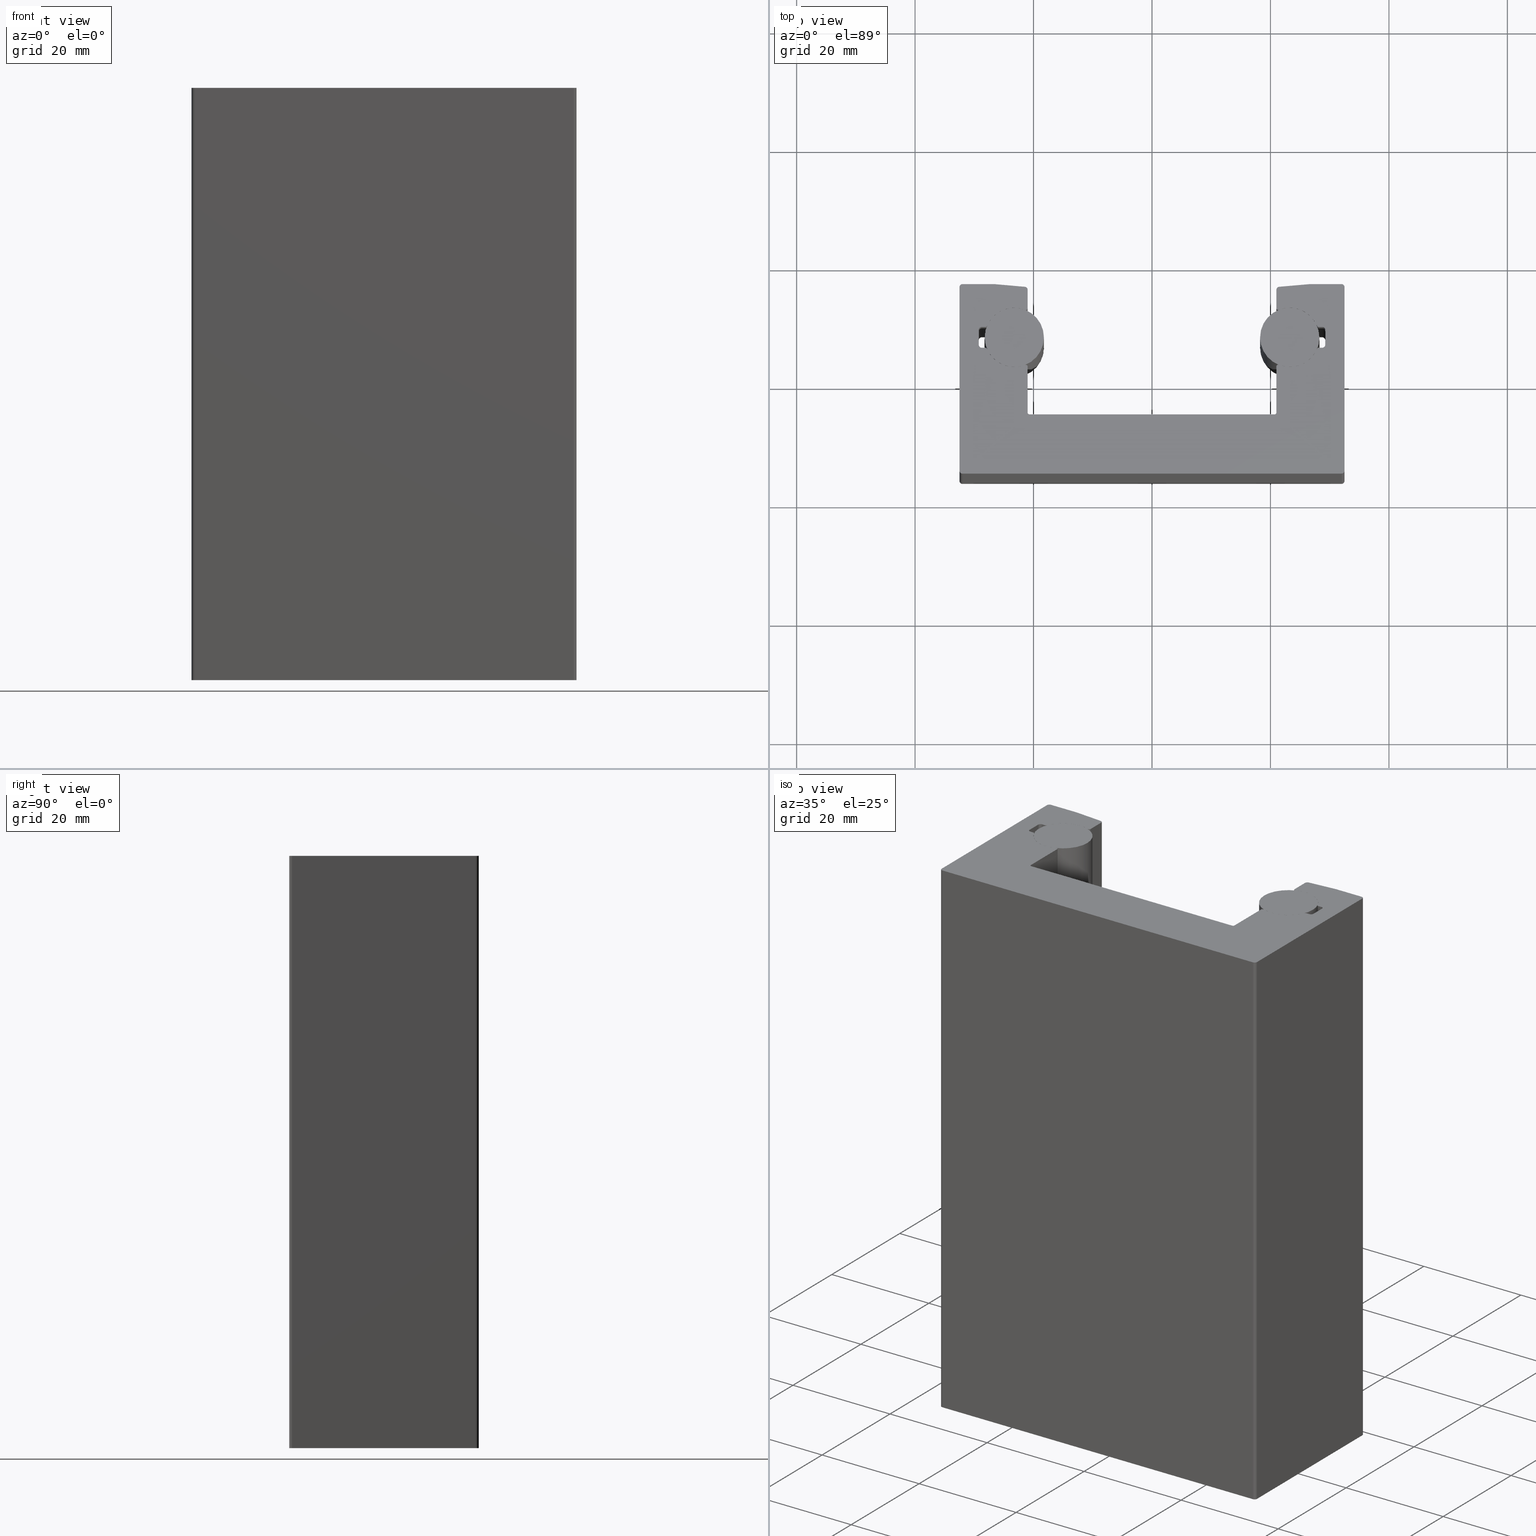
[diagram: canonical four-view strip — front | top / right | iso, engineering-drawing reading convention]
A machine part, canonical four-view strip (front | top / right | iso — engineering-drawing reading convention). The complete STEP part file that produces these views, byte-faithful:
ISO-10303-21;
HEADER;
/* Generated by software containing ST-Developer
 * from STEP Tools, Inc. (www.steptools.com) 
 */

FILE_DESCRIPTION(
/* description */ ('GUIDA LINEARE MR65 COMPLETA DI TONDINO'),
/* implementation_level */ '2;1');

FILE_NAME(
/* name */ 
'C:\\Users\\tecnico5\\Desktop\\SITOWEB\\APRGD000002\\APRGD000002.stp',
/* time_stamp */ '2022-07-27T08:11:50+02:00',
/* author */ ('tecnico3.vi'),
/* organization */ (''),
/* preprocessor_version */ 'ST-DEVELOPER v18.1',
/* originating_system */ 'Autodesk Inventor 2022',
/* authorisation */ '');

FILE_SCHEMA (('AUTOMOTIVE_DESIGN { 1 0 10303 214 3 1 1 }'));
ENDSEC;

DATA;
#10=MECHANICAL_DESIGN_GEOMETRIC_PRESENTATION_REPRESENTATION('',(#27,#28),
#1697);
#11=ITEM_DEFINED_TRANSFORMATION($,$,#1003,#1108);
#12=ITEM_DEFINED_TRANSFORMATION($,$,#1102,#1109);
#13=ITEM_DEFINED_TRANSFORMATION($,$,#1102,#1110);
#14=(
REPRESENTATION_RELATIONSHIP($,$,#1712,#1711)
REPRESENTATION_RELATIONSHIP_WITH_TRANSFORMATION(#11)
SHAPE_REPRESENTATION_RELATIONSHIP()
);
#15=(
REPRESENTATION_RELATIONSHIP($,$,#1713,#1711)
REPRESENTATION_RELATIONSHIP_WITH_TRANSFORMATION(#12)
SHAPE_REPRESENTATION_RELATIONSHIP()
);
#16=(
REPRESENTATION_RELATIONSHIP($,$,#1713,#1711)
REPRESENTATION_RELATIONSHIP_WITH_TRANSFORMATION(#13)
SHAPE_REPRESENTATION_RELATIONSHIP()
);
#17=CONTEXT_DEPENDENT_SHAPE_REPRESENTATION(#14,#1708);
#18=CONTEXT_DEPENDENT_SHAPE_REPRESENTATION(#15,#1709);
#19=CONTEXT_DEPENDENT_SHAPE_REPRESENTATION(#16,#1710);
#20=NEXT_ASSEMBLY_USAGE_OCCURRENCE('DM01.6532.00A:1','DM01.6532.00A:1',
'DM01.6532.00A:1',#1715,#1716,'DM01.6532.00A:1');
#21=NEXT_ASSEMBLY_USAGE_OCCURRENCE('03.435.00:1','03.435.00:1',
'03.435.00:1',#1715,#1717,'03.435.00:1');
#22=NEXT_ASSEMBLY_USAGE_OCCURRENCE('03.435.00:2','03.435.00:2',
'03.435.00:2',#1715,#1717,'03.435.00:2');
#23=SHAPE_REPRESENTATION_RELATIONSHIP('SRR','None',#1712,#25);
#24=SHAPE_REPRESENTATION_RELATIONSHIP('SRR','None',#1713,#26);
#25=ADVANCED_BREP_SHAPE_REPRESENTATION('',(#29),#1695);
#26=ADVANCED_BREP_SHAPE_REPRESENTATION('',(#30),#1696);
#27=STYLED_ITEM('',(#966),#29);
#28=STYLED_ITEM('',(#967),#30);
#29=MANIFOLD_SOLID_BREP('Solido1',#938);
#30=MANIFOLD_SOLID_BREP('Solido1',#939);
#31=PLANE('',#1007);
#32=PLANE('',#1011);
#33=PLANE('',#1015);
#34=PLANE('',#1019);
#35=PLANE('',#1026);
#36=PLANE('',#1030);
#37=PLANE('',#1040);
#38=PLANE('',#1050);
#39=PLANE('',#1054);
#40=PLANE('',#1058);
#41=PLANE('',#1062);
#42=PLANE('',#1063);
#43=PLANE('',#1076);
#44=PLANE('',#1086);
#45=PLANE('',#1089);
#46=PLANE('',#1091);
#47=PLANE('',#1095);
#48=PLANE('',#1099);
#49=PLANE('',#1100);
#50=PLANE('',#1101);
#51=PLANE('',#1103);
#52=PLANE('',#1107);
#53=FACE_OUTER_BOUND('',#102,.T.);
#54=FACE_OUTER_BOUND('',#103,.T.);
#55=FACE_OUTER_BOUND('',#104,.T.);
#56=FACE_OUTER_BOUND('',#105,.T.);
#57=FACE_OUTER_BOUND('',#106,.T.);
#58=FACE_OUTER_BOUND('',#107,.T.);
#59=FACE_OUTER_BOUND('',#108,.T.);
#60=FACE_OUTER_BOUND('',#109,.T.);
#61=FACE_OUTER_BOUND('',#110,.T.);
#62=FACE_OUTER_BOUND('',#111,.T.);
#63=FACE_OUTER_BOUND('',#112,.T.);
#64=FACE_OUTER_BOUND('',#113,.T.);
#65=FACE_OUTER_BOUND('',#114,.T.);
#66=FACE_OUTER_BOUND('',#115,.T.);
#67=FACE_OUTER_BOUND('',#116,.T.);
#68=FACE_OUTER_BOUND('',#117,.T.);
#69=FACE_OUTER_BOUND('',#118,.T.);
#70=FACE_OUTER_BOUND('',#119,.T.);
#71=FACE_OUTER_BOUND('',#120,.T.);
#72=FACE_OUTER_BOUND('',#121,.T.);
#73=FACE_OUTER_BOUND('',#122,.T.);
#74=FACE_OUTER_BOUND('',#123,.T.);
#75=FACE_OUTER_BOUND('',#124,.T.);
#76=FACE_OUTER_BOUND('',#125,.T.);
#77=FACE_OUTER_BOUND('',#126,.T.);
#78=FACE_OUTER_BOUND('',#127,.T.);
#79=FACE_OUTER_BOUND('',#128,.T.);
#80=FACE_OUTER_BOUND('',#129,.T.);
#81=FACE_OUTER_BOUND('',#130,.T.);
#82=FACE_OUTER_BOUND('',#131,.T.);
#83=FACE_OUTER_BOUND('',#132,.T.);
#84=FACE_OUTER_BOUND('',#133,.T.);
#85=FACE_OUTER_BOUND('',#134,.T.);
#86=FACE_OUTER_BOUND('',#135,.T.);
#87=FACE_OUTER_BOUND('',#136,.T.);
#88=FACE_OUTER_BOUND('',#137,.T.);
#89=FACE_OUTER_BOUND('',#138,.T.);
#90=FACE_OUTER_BOUND('',#139,.T.);
#91=FACE_OUTER_BOUND('',#140,.T.);
#92=FACE_OUTER_BOUND('',#141,.T.);
#93=FACE_OUTER_BOUND('',#142,.T.);
#94=FACE_OUTER_BOUND('',#143,.T.);
#95=FACE_OUTER_BOUND('',#144,.T.);
#96=FACE_OUTER_BOUND('',#145,.T.);
#97=FACE_OUTER_BOUND('',#146,.T.);
#98=FACE_OUTER_BOUND('',#147,.T.);
#99=FACE_OUTER_BOUND('',#148,.T.);
#100=FACE_OUTER_BOUND('',#149,.T.);
#101=FACE_OUTER_BOUND('',#150,.T.);
#102=EDGE_LOOP('',(#592,#593,#594,#595));
#103=EDGE_LOOP('',(#596,#597,#598,#599));
#104=EDGE_LOOP('',(#600,#601,#602,#603));
#105=EDGE_LOOP('',(#604,#605,#606,#607));
#106=EDGE_LOOP('',(#608,#609,#610,#611));
#107=EDGE_LOOP('',(#612,#613,#614,#615));
#108=EDGE_LOOP('',(#616,#617,#618,#619));
#109=EDGE_LOOP('',(#620,#621,#622,#623));
#110=EDGE_LOOP('',(#624,#625,#626,#627));
#111=EDGE_LOOP('',(#628,#629,#630,#631));
#112=EDGE_LOOP('',(#632,#633,#634,#635));
#113=EDGE_LOOP('',(#636,#637,#638,#639));
#114=EDGE_LOOP('',(#640,#641,#642,#643));
#115=EDGE_LOOP('',(#644,#645,#646,#647));
#116=EDGE_LOOP('',(#648,#649,#650,#651));
#117=EDGE_LOOP('',(#652,#653,#654,#655));
#118=EDGE_LOOP('',(#656,#657,#658,#659));
#119=EDGE_LOOP('',(#660,#661,#662,#663));
#120=EDGE_LOOP('',(#664,#665,#666,#667));
#121=EDGE_LOOP('',(#668,#669,#670,#671));
#122=EDGE_LOOP('',(#672,#673,#674,#675));
#123=EDGE_LOOP('',(#676,#677,#678,#679));
#124=EDGE_LOOP('',(#680,#681,#682,#683));
#125=EDGE_LOOP('',(#684,#685,#686,#687));
#126=EDGE_LOOP('',(#688,#689,#690,#691));
#127=EDGE_LOOP('',(#692,#693,#694,#695));
#128=EDGE_LOOP('',(#696,#697,#698,#699));
#129=EDGE_LOOP('',(#700,#701,#702,#703,#704,#705,#706,#707,#708,#709,#710,
#711,#712,#713,#714,#715,#716,#717,#718,#719,#720,#721,#722,#723,#724,#725,
#726,#727,#728,#729,#730,#731,#732,#733,#734,#735,#736,#737,#738,#739,#740,
#741,#742,#743));
#130=EDGE_LOOP('',(#744,#745,#746,#747));
#131=EDGE_LOOP('',(#748,#749,#750,#751,#752,#753,#754,#755,#756,#757,#758,
#759,#760,#761,#762,#763,#764,#765,#766,#767,#768,#769,#770,#771,#772,#773,
#774,#775,#776,#777,#778,#779,#780,#781,#782,#783,#784,#785,#786,#787,#788,
#789,#790,#791));
#132=EDGE_LOOP('',(#792,#793,#794,#795));
#133=EDGE_LOOP('',(#796,#797,#798,#799));
#134=EDGE_LOOP('',(#800,#801,#802,#803));
#135=EDGE_LOOP('',(#804,#805,#806,#807));
#136=EDGE_LOOP('',(#808,#809,#810,#811));
#137=EDGE_LOOP('',(#812,#813,#814,#815));
#138=EDGE_LOOP('',(#816,#817,#818,#819));
#139=EDGE_LOOP('',(#820,#821,#822,#823));
#140=EDGE_LOOP('',(#824,#825,#826,#827));
#141=EDGE_LOOP('',(#828,#829,#830,#831));
#142=EDGE_LOOP('',(#832,#833,#834,#835));
#143=EDGE_LOOP('',(#836,#837,#838,#839));
#144=EDGE_LOOP('',(#840,#841,#842,#843));
#145=EDGE_LOOP('',(#844,#845,#846,#847));
#146=EDGE_LOOP('',(#848,#849,#850,#851));
#147=EDGE_LOOP('',(#852,#853,#854,#855));
#148=EDGE_LOOP('',(#856));
#149=EDGE_LOOP('',(#857,#858,#859,#860));
#150=EDGE_LOOP('',(#861));
#151=LINE('',#1417,#232);
#152=LINE('',#1420,#233);
#153=LINE('',#1423,#234);
#154=LINE('',#1425,#235);
#155=LINE('',#1426,#236);
#156=LINE('',#1432,#237);
#157=LINE('',#1435,#238);
#158=LINE('',#1437,#239);
#159=LINE('',#1438,#240);
#160=LINE('',#1444,#241);
#161=LINE('',#1447,#242);
#162=LINE('',#1450,#243);
#163=LINE('',#1452,#244);
#164=LINE('',#1453,#245);
#165=LINE('',#1459,#246);
#166=LINE('',#1462,#247);
#167=LINE('',#1464,#248);
#168=LINE('',#1465,#249);
#169=LINE('',#1470,#250);
#170=LINE('',#1477,#251);
#171=LINE('',#1480,#252);
#172=LINE('',#1483,#253);
#173=LINE('',#1485,#254);
#174=LINE('',#1486,#255);
#175=LINE('',#1492,#256);
#176=LINE('',#1495,#257);
#177=LINE('',#1498,#258);
#178=LINE('',#1500,#259);
#179=LINE('',#1501,#260);
#180=LINE('',#1506,#261);
#181=LINE('',#1512,#262);
#182=LINE('',#1518,#263);
#183=LINE('',#1521,#264);
#184=LINE('',#1522,#265);
#185=LINE('',#1527,#266);
#186=LINE('',#1533,#267);
#187=LINE('',#1539,#268);
#188=LINE('',#1540,#269);
#189=LINE('',#1546,#270);
#190=LINE('',#1549,#271);
#191=LINE('',#1552,#272);
#192=LINE('',#1554,#273);
#193=LINE('',#1555,#274);
#194=LINE('',#1560,#275);
#195=LINE('',#1564,#276);
#196=LINE('',#1566,#277);
#197=LINE('',#1567,#278);
#198=LINE('',#1573,#279);
#199=LINE('',#1576,#280);
#200=LINE('',#1579,#281);
#201=LINE('',#1581,#282);
#202=LINE('',#1582,#283);
#203=LINE('',#1584,#284);
#204=LINE('',#1586,#285);
#205=LINE('',#1590,#286);
#206=LINE('',#1597,#287);
#207=LINE('',#1605,#288);
#208=LINE('',#1609,#289);
#209=LINE('',#1613,#290);
#210=LINE('',#1617,#291);
#211=LINE('',#1621,#292);
#212=LINE('',#1625,#293);
#213=LINE('',#1629,#294);
#214=LINE('',#1636,#295);
#215=LINE('',#1644,#296);
#216=LINE('',#1647,#297);
#217=LINE('',#1648,#298);
#218=LINE('',#1650,#299);
#219=LINE('',#1652,#300);
#220=LINE('',#1654,#301);
#221=LINE('',#1655,#302);
#222=LINE('',#1657,#303);
#223=LINE('',#1659,#304);
#224=LINE('',#1660,#305);
#225=LINE('',#1662,#306);
#226=LINE('',#1664,#307);
#227=LINE('',#1666,#308);
#228=LINE('',#1668,#309);
#229=LINE('',#1671,#310);
#230=LINE('',#1673,#311);
#231=LINE('',#1685,#312);
#232=VECTOR('',#1119,10.);
#233=VECTOR('',#1122,10.);
#234=VECTOR('',#1125,10.);
#235=VECTOR('',#1126,10.);
#236=VECTOR('',#1127,10.);
#237=VECTOR('',#1134,10.);
#238=VECTOR('',#1137,10.);
#239=VECTOR('',#1138,10.);
#240=VECTOR('',#1139,10.);
#241=VECTOR('',#1144,10.);
#242=VECTOR('',#1147,10.);
#243=VECTOR('',#1150,10.);
#244=VECTOR('',#1151,10.);
#245=VECTOR('',#1152,10.);
#246=VECTOR('',#1159,10.);
#247=VECTOR('',#1162,10.);
#248=VECTOR('',#1163,10.);
#249=VECTOR('',#1164,10.);
#250=VECTOR('',#1169,10.);
#251=VECTOR('',#1176,10.);
#252=VECTOR('',#1179,10.);
#253=VECTOR('',#1182,10.);
#254=VECTOR('',#1183,10.);
#255=VECTOR('',#1184,10.);
#256=VECTOR('',#1189,10.);
#257=VECTOR('',#1192,10.);
#258=VECTOR('',#1195,10.);
#259=VECTOR('',#1196,10.);
#260=VECTOR('',#1197,10.);
#261=VECTOR('',#1202,10.);
#262=VECTOR('',#1209,10.);
#263=VECTOR('',#1216,10.);
#264=VECTOR('',#1221,10.);
#265=VECTOR('',#1222,10.);
#266=VECTOR('',#1227,10.);
#267=VECTOR('',#1234,10.);
#268=VECTOR('',#1245,10.);
#269=VECTOR('',#1246,10.);
#270=VECTOR('',#1251,10.);
#271=VECTOR('',#1254,10.);
#272=VECTOR('',#1257,10.);
#273=VECTOR('',#1258,10.);
#274=VECTOR('',#1259,10.);
#275=VECTOR('',#1264,10.);
#276=VECTOR('',#1269,10.);
#277=VECTOR('',#1270,10.);
#278=VECTOR('',#1271,10.);
#279=VECTOR('',#1276,10.);
#280=VECTOR('',#1279,10.);
#281=VECTOR('',#1282,10.);
#282=VECTOR('',#1283,10.);
#283=VECTOR('',#1284,10.);
#284=VECTOR('',#1287,10.);
#285=VECTOR('',#1288,10.);
#286=VECTOR('',#1291,10.);
#287=VECTOR('',#1298,10.);
#288=VECTOR('',#1305,10.);
#289=VECTOR('',#1308,10.);
#290=VECTOR('',#1311,10.);
#291=VECTOR('',#1316,10.);
#292=VECTOR('',#1321,10.);
#293=VECTOR('',#1324,10.);
#294=VECTOR('',#1327,10.);
#295=VECTOR('',#1334,10.);
#296=VECTOR('',#1341,10.);
#297=VECTOR('',#1344,10.);
#298=VECTOR('',#1345,10.);
#299=VECTOR('',#1348,10.);
#300=VECTOR('',#1351,10.);
#301=VECTOR('',#1354,10.);
#302=VECTOR('',#1355,10.);
#303=VECTOR('',#1358,10.);
#304=VECTOR('',#1361,10.);
#305=VECTOR('',#1362,10.);
#306=VECTOR('',#1365,10.);
#307=VECTOR('',#1368,10.);
#308=VECTOR('',#1371,10.);
#309=VECTOR('',#1374,10.);
#310=VECTOR('',#1379,10.);
#311=VECTOR('',#1382,10.);
#312=VECTOR('',#1401,5.);
#313=CIRCLE('',#1005,0.5);
#314=CIRCLE('',#1006,0.5);
#315=CIRCLE('',#1009,0.5);
#316=CIRCLE('',#1010,0.5);
#317=CIRCLE('',#1013,0.5);
#318=CIRCLE('',#1014,0.5);
#319=CIRCLE('',#1017,0.5);
#320=CIRCLE('',#1018,0.5);
#321=CIRCLE('',#1021,0.5);
#322=CIRCLE('',#1022,0.5);
#323=CIRCLE('',#1024,0.5);
#324=CIRCLE('',#1025,0.5);
#325=CIRCLE('',#1028,0.3);
#326=CIRCLE('',#1029,0.3);
#327=CIRCLE('',#1032,0.3);
#328=CIRCLE('',#1033,0.3);
#329=CIRCLE('',#1035,5.);
#330=CIRCLE('',#1036,5.);
#331=CIRCLE('',#1038,0.3);
#332=CIRCLE('',#1039,0.3);
#333=CIRCLE('',#1042,0.3);
#334=CIRCLE('',#1043,0.3);
#335=CIRCLE('',#1045,5.);
#336=CIRCLE('',#1046,5.);
#337=CIRCLE('',#1048,0.3);
#338=CIRCLE('',#1049,0.3);
#339=CIRCLE('',#1052,0.5);
#340=CIRCLE('',#1053,0.5);
#341=CIRCLE('',#1056,0.5);
#342=CIRCLE('',#1057,0.5);
#343=CIRCLE('',#1060,0.5);
#344=CIRCLE('',#1061,0.5);
#345=CIRCLE('',#1064,0.3);
#346=CIRCLE('',#1065,0.3);
#347=CIRCLE('',#1066,5.);
#348=CIRCLE('',#1067,0.3);
#349=CIRCLE('',#1068,0.3);
#350=CIRCLE('',#1069,5.);
#351=CIRCLE('',#1070,0.3);
#352=CIRCLE('',#1071,0.5);
#353=CIRCLE('',#1072,0.5);
#354=CIRCLE('',#1073,0.5);
#355=CIRCLE('',#1075,0.5);
#356=CIRCLE('',#1077,0.5);
#357=CIRCLE('',#1078,0.5);
#358=CIRCLE('',#1079,0.3);
#359=CIRCLE('',#1080,5.);
#360=CIRCLE('',#1081,0.3);
#361=CIRCLE('',#1082,0.3);
#362=CIRCLE('',#1083,5.);
#363=CIRCLE('',#1084,0.3);
#364=CIRCLE('',#1085,0.3);
#365=CIRCLE('',#1104,5.);
#366=CIRCLE('',#1106,5.);
#367=VERTEX_POINT('',#1413);
#368=VERTEX_POINT('',#1414);
#369=VERTEX_POINT('',#1416);
#370=VERTEX_POINT('',#1418);
#371=VERTEX_POINT('',#1422);
#372=VERTEX_POINT('',#1424);
#373=VERTEX_POINT('',#1428);
#374=VERTEX_POINT('',#1430);
#375=VERTEX_POINT('',#1434);
#376=VERTEX_POINT('',#1436);
#377=VERTEX_POINT('',#1440);
#378=VERTEX_POINT('',#1441);
#379=VERTEX_POINT('',#1443);
#380=VERTEX_POINT('',#1445);
#381=VERTEX_POINT('',#1449);
#382=VERTEX_POINT('',#1451);
#383=VERTEX_POINT('',#1455);
#384=VERTEX_POINT('',#1457);
#385=VERTEX_POINT('',#1461);
#386=VERTEX_POINT('',#1463);
#387=VERTEX_POINT('',#1467);
#388=VERTEX_POINT('',#1469);
#389=VERTEX_POINT('',#1473);
#390=VERTEX_POINT('',#1474);
#391=VERTEX_POINT('',#1476);
#392=VERTEX_POINT('',#1478);
#393=VERTEX_POINT('',#1482);
#394=VERTEX_POINT('',#1484);
#395=VERTEX_POINT('',#1488);
#396=VERTEX_POINT('',#1489);
#397=VERTEX_POINT('',#1491);
#398=VERTEX_POINT('',#1493);
#399=VERTEX_POINT('',#1497);
#400=VERTEX_POINT('',#1499);
#401=VERTEX_POINT('',#1503);
#402=VERTEX_POINT('',#1505);
#403=VERTEX_POINT('',#1509);
#404=VERTEX_POINT('',#1511);
#405=VERTEX_POINT('',#1515);
#406=VERTEX_POINT('',#1517);
#407=VERTEX_POINT('',#1524);
#408=VERTEX_POINT('',#1526);
#409=VERTEX_POINT('',#1530);
#410=VERTEX_POINT('',#1532);
#411=VERTEX_POINT('',#1542);
#412=VERTEX_POINT('',#1543);
#413=VERTEX_POINT('',#1545);
#414=VERTEX_POINT('',#1547);
#415=VERTEX_POINT('',#1551);
#416=VERTEX_POINT('',#1553);
#417=VERTEX_POINT('',#1557);
#418=VERTEX_POINT('',#1559);
#419=VERTEX_POINT('',#1563);
#420=VERTEX_POINT('',#1565);
#421=VERTEX_POINT('',#1569);
#422=VERTEX_POINT('',#1570);
#423=VERTEX_POINT('',#1572);
#424=VERTEX_POINT('',#1574);
#425=VERTEX_POINT('',#1578);
#426=VERTEX_POINT('',#1580);
#427=VERTEX_POINT('',#1585);
#428=VERTEX_POINT('',#1587);
#429=VERTEX_POINT('',#1589);
#430=VERTEX_POINT('',#1591);
#431=VERTEX_POINT('',#1593);
#432=VERTEX_POINT('',#1595);
#433=VERTEX_POINT('',#1598);
#434=VERTEX_POINT('',#1600);
#435=VERTEX_POINT('',#1602);
#436=VERTEX_POINT('',#1604);
#437=VERTEX_POINT('',#1606);
#438=VERTEX_POINT('',#1608);
#439=VERTEX_POINT('',#1610);
#440=VERTEX_POINT('',#1612);
#441=VERTEX_POINT('',#1616);
#442=VERTEX_POINT('',#1620);
#443=VERTEX_POINT('',#1622);
#444=VERTEX_POINT('',#1624);
#445=VERTEX_POINT('',#1626);
#446=VERTEX_POINT('',#1628);
#447=VERTEX_POINT('',#1630);
#448=VERTEX_POINT('',#1632);
#449=VERTEX_POINT('',#1635);
#450=VERTEX_POINT('',#1637);
#451=VERTEX_POINT('',#1639);
#452=VERTEX_POINT('',#1641);
#453=VERTEX_POINT('',#1643);
#454=VERTEX_POINT('',#1645);
#455=VERTEX_POINT('',#1680);
#456=VERTEX_POINT('',#1683);
#457=EDGE_CURVE('',#367,#368,#313,.T.);
#458=EDGE_CURVE('',#369,#367,#151,.T.);
#459=EDGE_CURVE('',#370,#369,#314,.T.);
#460=EDGE_CURVE('',#368,#370,#152,.T.);
#461=EDGE_CURVE('',#370,#371,#153,.T.);
#462=EDGE_CURVE('',#371,#372,#154,.T.);
#463=EDGE_CURVE('',#372,#368,#155,.T.);
#464=EDGE_CURVE('',#372,#373,#315,.T.);
#465=EDGE_CURVE('',#374,#371,#316,.T.);
#466=EDGE_CURVE('',#373,#374,#156,.T.);
#467=EDGE_CURVE('',#374,#375,#157,.T.);
#468=EDGE_CURVE('',#375,#376,#158,.T.);
#469=EDGE_CURVE('',#376,#373,#159,.T.);
#470=EDGE_CURVE('',#377,#378,#317,.T.);
#471=EDGE_CURVE('',#379,#377,#160,.T.);
#472=EDGE_CURVE('',#380,#379,#318,.T.);
#473=EDGE_CURVE('',#378,#380,#161,.T.);
#474=EDGE_CURVE('',#380,#381,#162,.T.);
#475=EDGE_CURVE('',#381,#382,#163,.T.);
#476=EDGE_CURVE('',#382,#378,#164,.T.);
#477=EDGE_CURVE('',#382,#383,#319,.T.);
#478=EDGE_CURVE('',#384,#381,#320,.T.);
#479=EDGE_CURVE('',#383,#384,#165,.T.);
#480=EDGE_CURVE('',#384,#385,#166,.T.);
#481=EDGE_CURVE('',#385,#386,#167,.T.);
#482=EDGE_CURVE('',#386,#383,#168,.T.);
#483=EDGE_CURVE('',#387,#385,#321,.T.);
#484=EDGE_CURVE('',#388,#387,#169,.T.);
#485=EDGE_CURVE('',#386,#388,#322,.T.);
#486=EDGE_CURVE('',#389,#390,#323,.T.);
#487=EDGE_CURVE('',#391,#389,#170,.T.);
#488=EDGE_CURVE('',#392,#391,#324,.T.);
#489=EDGE_CURVE('',#390,#392,#171,.T.);
#490=EDGE_CURVE('',#392,#393,#172,.T.);
#491=EDGE_CURVE('',#393,#394,#173,.T.);
#492=EDGE_CURVE('',#394,#390,#174,.T.);
#493=EDGE_CURVE('',#395,#396,#325,.T.);
#494=EDGE_CURVE('',#397,#395,#175,.T.);
#495=EDGE_CURVE('',#398,#397,#326,.T.);
#496=EDGE_CURVE('',#396,#398,#176,.T.);
#497=EDGE_CURVE('',#398,#399,#177,.T.);
#498=EDGE_CURVE('',#399,#400,#178,.T.);
#499=EDGE_CURVE('',#400,#396,#179,.T.);
#500=EDGE_CURVE('',#401,#399,#327,.T.);
#501=EDGE_CURVE('',#402,#401,#180,.T.);
#502=EDGE_CURVE('',#400,#402,#328,.T.);
#503=EDGE_CURVE('',#401,#403,#329,.T.);
#504=EDGE_CURVE('',#403,#404,#181,.T.);
#505=EDGE_CURVE('',#404,#402,#330,.T.);
#506=EDGE_CURVE('',#405,#403,#331,.T.);
#507=EDGE_CURVE('',#406,#405,#182,.T.);
#508=EDGE_CURVE('',#404,#406,#332,.T.);
#509=EDGE_CURVE('',#367,#406,#183,.T.);
#510=EDGE_CURVE('',#405,#369,#184,.T.);
#511=EDGE_CURVE('',#407,#375,#333,.T.);
#512=EDGE_CURVE('',#408,#407,#185,.T.);
#513=EDGE_CURVE('',#376,#408,#334,.T.);
#514=EDGE_CURVE('',#407,#409,#335,.T.);
#515=EDGE_CURVE('',#409,#410,#186,.T.);
#516=EDGE_CURVE('',#410,#408,#336,.T.);
#517=EDGE_CURVE('',#410,#393,#337,.T.);
#518=EDGE_CURVE('',#394,#409,#338,.T.);
#519=EDGE_CURVE('',#387,#391,#187,.T.);
#520=EDGE_CURVE('',#389,#388,#188,.T.);
#521=EDGE_CURVE('',#411,#412,#339,.T.);
#522=EDGE_CURVE('',#412,#413,#189,.T.);
#523=EDGE_CURVE('',#413,#414,#340,.T.);
#524=EDGE_CURVE('',#414,#411,#190,.T.);
#525=EDGE_CURVE('',#415,#412,#191,.T.);
#526=EDGE_CURVE('',#416,#415,#192,.T.);
#527=EDGE_CURVE('',#413,#416,#193,.T.);
#528=EDGE_CURVE('',#415,#417,#341,.T.);
#529=EDGE_CURVE('',#417,#418,#194,.T.);
#530=EDGE_CURVE('',#418,#416,#342,.T.);
#531=EDGE_CURVE('',#419,#417,#195,.T.);
#532=EDGE_CURVE('',#420,#419,#196,.T.);
#533=EDGE_CURVE('',#418,#420,#197,.T.);
#534=EDGE_CURVE('',#421,#422,#343,.T.);
#535=EDGE_CURVE('',#422,#423,#198,.T.);
#536=EDGE_CURVE('',#423,#424,#344,.T.);
#537=EDGE_CURVE('',#424,#421,#199,.T.);
#538=EDGE_CURVE('',#425,#422,#200,.T.);
#539=EDGE_CURVE('',#426,#425,#201,.T.);
#540=EDGE_CURVE('',#423,#426,#202,.T.);
#541=EDGE_CURVE('',#421,#377,#203,.T.);
#542=EDGE_CURVE('',#397,#427,#204,.T.);
#543=EDGE_CURVE('',#428,#427,#345,.T.);
#544=EDGE_CURVE('',#428,#429,#205,.T.);
#545=EDGE_CURVE('',#430,#429,#346,.T.);
#546=EDGE_CURVE('',#430,#431,#347,.T.);
#547=EDGE_CURVE('',#432,#431,#348,.T.);
#548=EDGE_CURVE('',#432,#414,#206,.T.);
#549=EDGE_CURVE('',#433,#420,#349,.T.);
#550=EDGE_CURVE('',#433,#434,#350,.T.);
#551=EDGE_CURVE('',#435,#434,#351,.T.);
#552=EDGE_CURVE('',#435,#436,#207,.T.);
#553=EDGE_CURVE('',#437,#436,#352,.T.);
#554=EDGE_CURVE('',#437,#438,#208,.T.);
#555=EDGE_CURVE('',#439,#438,#353,.T.);
#556=EDGE_CURVE('',#439,#440,#209,.T.);
#557=EDGE_CURVE('',#425,#440,#354,.T.);
#558=EDGE_CURVE('',#440,#441,#210,.T.);
#559=EDGE_CURVE('',#441,#426,#355,.T.);
#560=EDGE_CURVE('',#441,#442,#211,.T.);
#561=EDGE_CURVE('',#443,#442,#356,.T.);
#562=EDGE_CURVE('',#443,#444,#212,.T.);
#563=EDGE_CURVE('',#445,#444,#357,.T.);
#564=EDGE_CURVE('',#445,#446,#213,.T.);
#565=EDGE_CURVE('',#447,#446,#358,.T.);
#566=EDGE_CURVE('',#447,#448,#359,.T.);
#567=EDGE_CURVE('',#419,#448,#360,.T.);
#568=EDGE_CURVE('',#411,#449,#214,.T.);
#569=EDGE_CURVE('',#450,#449,#361,.T.);
#570=EDGE_CURVE('',#450,#451,#362,.T.);
#571=EDGE_CURVE('',#452,#451,#363,.T.);
#572=EDGE_CURVE('',#452,#453,#215,.T.);
#573=EDGE_CURVE('',#454,#453,#364,.T.);
#574=EDGE_CURVE('',#395,#454,#216,.T.);
#575=EDGE_CURVE('',#424,#379,#217,.T.);
#576=EDGE_CURVE('',#442,#439,#218,.T.);
#577=EDGE_CURVE('',#438,#443,#219,.T.);
#578=EDGE_CURVE('',#436,#445,#220,.T.);
#579=EDGE_CURVE('',#444,#437,#221,.T.);
#580=EDGE_CURVE('',#446,#435,#222,.T.);
#581=EDGE_CURVE('',#453,#428,#223,.T.);
#582=EDGE_CURVE('',#427,#454,#224,.T.);
#583=EDGE_CURVE('',#429,#452,#225,.T.);
#584=EDGE_CURVE('',#451,#430,#226,.T.);
#585=EDGE_CURVE('',#431,#450,#227,.T.);
#586=EDGE_CURVE('',#449,#432,#228,.T.);
#587=EDGE_CURVE('',#448,#433,#229,.T.);
#588=EDGE_CURVE('',#434,#447,#230,.T.);
#589=EDGE_CURVE('',#455,#455,#365,.T.);
#590=EDGE_CURVE('',#456,#456,#366,.T.);
#591=EDGE_CURVE('',#456,#455,#231,.T.);
#592=ORIENTED_EDGE('',*,*,#457,.F.);
#593=ORIENTED_EDGE('',*,*,#458,.F.);
#594=ORIENTED_EDGE('',*,*,#459,.F.);
#595=ORIENTED_EDGE('',*,*,#460,.F.);
#596=ORIENTED_EDGE('',*,*,#460,.T.);
#597=ORIENTED_EDGE('',*,*,#461,.T.);
#598=ORIENTED_EDGE('',*,*,#462,.T.);
#599=ORIENTED_EDGE('',*,*,#463,.T.);
#600=ORIENTED_EDGE('',*,*,#464,.F.);
#601=ORIENTED_EDGE('',*,*,#462,.F.);
#602=ORIENTED_EDGE('',*,*,#465,.F.);
#603=ORIENTED_EDGE('',*,*,#466,.F.);
#604=ORIENTED_EDGE('',*,*,#466,.T.);
#605=ORIENTED_EDGE('',*,*,#467,.T.);
#606=ORIENTED_EDGE('',*,*,#468,.T.);
#607=ORIENTED_EDGE('',*,*,#469,.T.);
#608=ORIENTED_EDGE('',*,*,#470,.F.);
#609=ORIENTED_EDGE('',*,*,#471,.F.);
#610=ORIENTED_EDGE('',*,*,#472,.F.);
#611=ORIENTED_EDGE('',*,*,#473,.F.);
#612=ORIENTED_EDGE('',*,*,#473,.T.);
#613=ORIENTED_EDGE('',*,*,#474,.T.);
#614=ORIENTED_EDGE('',*,*,#475,.T.);
#615=ORIENTED_EDGE('',*,*,#476,.T.);
#616=ORIENTED_EDGE('',*,*,#477,.F.);
#617=ORIENTED_EDGE('',*,*,#475,.F.);
#618=ORIENTED_EDGE('',*,*,#478,.F.);
#619=ORIENTED_EDGE('',*,*,#479,.F.);
#620=ORIENTED_EDGE('',*,*,#479,.T.);
#621=ORIENTED_EDGE('',*,*,#480,.T.);
#622=ORIENTED_EDGE('',*,*,#481,.T.);
#623=ORIENTED_EDGE('',*,*,#482,.T.);
#624=ORIENTED_EDGE('',*,*,#483,.F.);
#625=ORIENTED_EDGE('',*,*,#484,.F.);
#626=ORIENTED_EDGE('',*,*,#485,.F.);
#627=ORIENTED_EDGE('',*,*,#481,.F.);
#628=ORIENTED_EDGE('',*,*,#486,.F.);
#629=ORIENTED_EDGE('',*,*,#487,.F.);
#630=ORIENTED_EDGE('',*,*,#488,.F.);
#631=ORIENTED_EDGE('',*,*,#489,.F.);
#632=ORIENTED_EDGE('',*,*,#489,.T.);
#633=ORIENTED_EDGE('',*,*,#490,.T.);
#634=ORIENTED_EDGE('',*,*,#491,.T.);
#635=ORIENTED_EDGE('',*,*,#492,.T.);
#636=ORIENTED_EDGE('',*,*,#493,.F.);
#637=ORIENTED_EDGE('',*,*,#494,.F.);
#638=ORIENTED_EDGE('',*,*,#495,.F.);
#639=ORIENTED_EDGE('',*,*,#496,.F.);
#640=ORIENTED_EDGE('',*,*,#496,.T.);
#641=ORIENTED_EDGE('',*,*,#497,.T.);
#642=ORIENTED_EDGE('',*,*,#498,.T.);
#643=ORIENTED_EDGE('',*,*,#499,.T.);
#644=ORIENTED_EDGE('',*,*,#500,.F.);
#645=ORIENTED_EDGE('',*,*,#501,.F.);
#646=ORIENTED_EDGE('',*,*,#502,.F.);
#647=ORIENTED_EDGE('',*,*,#498,.F.);
#648=ORIENTED_EDGE('',*,*,#501,.T.);
#649=ORIENTED_EDGE('',*,*,#503,.T.);
#650=ORIENTED_EDGE('',*,*,#504,.T.);
#651=ORIENTED_EDGE('',*,*,#505,.T.);
#652=ORIENTED_EDGE('',*,*,#506,.F.);
#653=ORIENTED_EDGE('',*,*,#507,.F.);
#654=ORIENTED_EDGE('',*,*,#508,.F.);
#655=ORIENTED_EDGE('',*,*,#504,.F.);
#656=ORIENTED_EDGE('',*,*,#458,.T.);
#657=ORIENTED_EDGE('',*,*,#509,.T.);
#658=ORIENTED_EDGE('',*,*,#507,.T.);
#659=ORIENTED_EDGE('',*,*,#510,.T.);
#660=ORIENTED_EDGE('',*,*,#511,.F.);
#661=ORIENTED_EDGE('',*,*,#512,.F.);
#662=ORIENTED_EDGE('',*,*,#513,.F.);
#663=ORIENTED_EDGE('',*,*,#468,.F.);
#664=ORIENTED_EDGE('',*,*,#512,.T.);
#665=ORIENTED_EDGE('',*,*,#514,.T.);
#666=ORIENTED_EDGE('',*,*,#515,.T.);
#667=ORIENTED_EDGE('',*,*,#516,.T.);
#668=ORIENTED_EDGE('',*,*,#517,.F.);
#669=ORIENTED_EDGE('',*,*,#515,.F.);
#670=ORIENTED_EDGE('',*,*,#518,.F.);
#671=ORIENTED_EDGE('',*,*,#491,.F.);
#672=ORIENTED_EDGE('',*,*,#484,.T.);
#673=ORIENTED_EDGE('',*,*,#519,.T.);
#674=ORIENTED_EDGE('',*,*,#487,.T.);
#675=ORIENTED_EDGE('',*,*,#520,.T.);
#676=ORIENTED_EDGE('',*,*,#521,.T.);
#677=ORIENTED_EDGE('',*,*,#522,.T.);
#678=ORIENTED_EDGE('',*,*,#523,.T.);
#679=ORIENTED_EDGE('',*,*,#524,.T.);
#680=ORIENTED_EDGE('',*,*,#522,.F.);
#681=ORIENTED_EDGE('',*,*,#525,.F.);
#682=ORIENTED_EDGE('',*,*,#526,.F.);
#683=ORIENTED_EDGE('',*,*,#527,.F.);
#684=ORIENTED_EDGE('',*,*,#528,.T.);
#685=ORIENTED_EDGE('',*,*,#529,.T.);
#686=ORIENTED_EDGE('',*,*,#530,.T.);
#687=ORIENTED_EDGE('',*,*,#526,.T.);
#688=ORIENTED_EDGE('',*,*,#529,.F.);
#689=ORIENTED_EDGE('',*,*,#531,.F.);
#690=ORIENTED_EDGE('',*,*,#532,.F.);
#691=ORIENTED_EDGE('',*,*,#533,.F.);
#692=ORIENTED_EDGE('',*,*,#534,.T.);
#693=ORIENTED_EDGE('',*,*,#535,.T.);
#694=ORIENTED_EDGE('',*,*,#536,.T.);
#695=ORIENTED_EDGE('',*,*,#537,.T.);
#696=ORIENTED_EDGE('',*,*,#535,.F.);
#697=ORIENTED_EDGE('',*,*,#538,.F.);
#698=ORIENTED_EDGE('',*,*,#539,.F.);
#699=ORIENTED_EDGE('',*,*,#540,.F.);
#700=ORIENTED_EDGE('',*,*,#534,.F.);
#701=ORIENTED_EDGE('',*,*,#541,.T.);
#702=ORIENTED_EDGE('',*,*,#470,.T.);
#703=ORIENTED_EDGE('',*,*,#476,.F.);
#704=ORIENTED_EDGE('',*,*,#477,.T.);
#705=ORIENTED_EDGE('',*,*,#482,.F.);
#706=ORIENTED_EDGE('',*,*,#485,.T.);
#707=ORIENTED_EDGE('',*,*,#520,.F.);
#708=ORIENTED_EDGE('',*,*,#486,.T.);
#709=ORIENTED_EDGE('',*,*,#492,.F.);
#710=ORIENTED_EDGE('',*,*,#518,.T.);
#711=ORIENTED_EDGE('',*,*,#514,.F.);
#712=ORIENTED_EDGE('',*,*,#511,.T.);
#713=ORIENTED_EDGE('',*,*,#467,.F.);
#714=ORIENTED_EDGE('',*,*,#465,.T.);
#715=ORIENTED_EDGE('',*,*,#461,.F.);
#716=ORIENTED_EDGE('',*,*,#459,.T.);
#717=ORIENTED_EDGE('',*,*,#510,.F.);
#718=ORIENTED_EDGE('',*,*,#506,.T.);
#719=ORIENTED_EDGE('',*,*,#503,.F.);
#720=ORIENTED_EDGE('',*,*,#500,.T.);
#721=ORIENTED_EDGE('',*,*,#497,.F.);
#722=ORIENTED_EDGE('',*,*,#495,.T.);
#723=ORIENTED_EDGE('',*,*,#542,.T.);
#724=ORIENTED_EDGE('',*,*,#543,.F.);
#725=ORIENTED_EDGE('',*,*,#544,.T.);
#726=ORIENTED_EDGE('',*,*,#545,.F.);
#727=ORIENTED_EDGE('',*,*,#546,.T.);
#728=ORIENTED_EDGE('',*,*,#547,.F.);
#729=ORIENTED_EDGE('',*,*,#548,.T.);
#730=ORIENTED_EDGE('',*,*,#523,.F.);
#731=ORIENTED_EDGE('',*,*,#527,.T.);
#732=ORIENTED_EDGE('',*,*,#530,.F.);
#733=ORIENTED_EDGE('',*,*,#533,.T.);
#734=ORIENTED_EDGE('',*,*,#549,.F.);
#735=ORIENTED_EDGE('',*,*,#550,.T.);
#736=ORIENTED_EDGE('',*,*,#551,.F.);
#737=ORIENTED_EDGE('',*,*,#552,.T.);
#738=ORIENTED_EDGE('',*,*,#553,.F.);
#739=ORIENTED_EDGE('',*,*,#554,.T.);
#740=ORIENTED_EDGE('',*,*,#555,.F.);
#741=ORIENTED_EDGE('',*,*,#556,.T.);
#742=ORIENTED_EDGE('',*,*,#557,.F.);
#743=ORIENTED_EDGE('',*,*,#538,.T.);
#744=ORIENTED_EDGE('',*,*,#557,.T.);
#745=ORIENTED_EDGE('',*,*,#558,.T.);
#746=ORIENTED_EDGE('',*,*,#559,.T.);
#747=ORIENTED_EDGE('',*,*,#539,.T.);
#748=ORIENTED_EDGE('',*,*,#536,.F.);
#749=ORIENTED_EDGE('',*,*,#540,.T.);
#750=ORIENTED_EDGE('',*,*,#559,.F.);
#751=ORIENTED_EDGE('',*,*,#560,.T.);
#752=ORIENTED_EDGE('',*,*,#561,.F.);
#753=ORIENTED_EDGE('',*,*,#562,.T.);
#754=ORIENTED_EDGE('',*,*,#563,.F.);
#755=ORIENTED_EDGE('',*,*,#564,.T.);
#756=ORIENTED_EDGE('',*,*,#565,.F.);
#757=ORIENTED_EDGE('',*,*,#566,.T.);
#758=ORIENTED_EDGE('',*,*,#567,.F.);
#759=ORIENTED_EDGE('',*,*,#531,.T.);
#760=ORIENTED_EDGE('',*,*,#528,.F.);
#761=ORIENTED_EDGE('',*,*,#525,.T.);
#762=ORIENTED_EDGE('',*,*,#521,.F.);
#763=ORIENTED_EDGE('',*,*,#568,.T.);
#764=ORIENTED_EDGE('',*,*,#569,.F.);
#765=ORIENTED_EDGE('',*,*,#570,.T.);
#766=ORIENTED_EDGE('',*,*,#571,.F.);
#767=ORIENTED_EDGE('',*,*,#572,.T.);
#768=ORIENTED_EDGE('',*,*,#573,.F.);
#769=ORIENTED_EDGE('',*,*,#574,.F.);
#770=ORIENTED_EDGE('',*,*,#493,.T.);
#771=ORIENTED_EDGE('',*,*,#499,.F.);
#772=ORIENTED_EDGE('',*,*,#502,.T.);
#773=ORIENTED_EDGE('',*,*,#505,.F.);
#774=ORIENTED_EDGE('',*,*,#508,.T.);
#775=ORIENTED_EDGE('',*,*,#509,.F.);
#776=ORIENTED_EDGE('',*,*,#457,.T.);
#777=ORIENTED_EDGE('',*,*,#463,.F.);
#778=ORIENTED_EDGE('',*,*,#464,.T.);
#779=ORIENTED_EDGE('',*,*,#469,.F.);
#780=ORIENTED_EDGE('',*,*,#513,.T.);
#781=ORIENTED_EDGE('',*,*,#516,.F.);
#782=ORIENTED_EDGE('',*,*,#517,.T.);
#783=ORIENTED_EDGE('',*,*,#490,.F.);
#784=ORIENTED_EDGE('',*,*,#488,.T.);
#785=ORIENTED_EDGE('',*,*,#519,.F.);
#786=ORIENTED_EDGE('',*,*,#483,.T.);
#787=ORIENTED_EDGE('',*,*,#480,.F.);
#788=ORIENTED_EDGE('',*,*,#478,.T.);
#789=ORIENTED_EDGE('',*,*,#474,.F.);
#790=ORIENTED_EDGE('',*,*,#472,.T.);
#791=ORIENTED_EDGE('',*,*,#575,.F.);
#792=ORIENTED_EDGE('',*,*,#558,.F.);
#793=ORIENTED_EDGE('',*,*,#556,.F.);
#794=ORIENTED_EDGE('',*,*,#576,.F.);
#795=ORIENTED_EDGE('',*,*,#560,.F.);
#796=ORIENTED_EDGE('',*,*,#561,.T.);
#797=ORIENTED_EDGE('',*,*,#576,.T.);
#798=ORIENTED_EDGE('',*,*,#555,.T.);
#799=ORIENTED_EDGE('',*,*,#577,.T.);
#800=ORIENTED_EDGE('',*,*,#553,.T.);
#801=ORIENTED_EDGE('',*,*,#578,.T.);
#802=ORIENTED_EDGE('',*,*,#563,.T.);
#803=ORIENTED_EDGE('',*,*,#579,.T.);
#804=ORIENTED_EDGE('',*,*,#578,.F.);
#805=ORIENTED_EDGE('',*,*,#552,.F.);
#806=ORIENTED_EDGE('',*,*,#580,.F.);
#807=ORIENTED_EDGE('',*,*,#564,.F.);
#808=ORIENTED_EDGE('',*,*,#573,.T.);
#809=ORIENTED_EDGE('',*,*,#581,.T.);
#810=ORIENTED_EDGE('',*,*,#543,.T.);
#811=ORIENTED_EDGE('',*,*,#582,.T.);
#812=ORIENTED_EDGE('',*,*,#581,.F.);
#813=ORIENTED_EDGE('',*,*,#572,.F.);
#814=ORIENTED_EDGE('',*,*,#583,.F.);
#815=ORIENTED_EDGE('',*,*,#544,.F.);
#816=ORIENTED_EDGE('',*,*,#545,.T.);
#817=ORIENTED_EDGE('',*,*,#583,.T.);
#818=ORIENTED_EDGE('',*,*,#571,.T.);
#819=ORIENTED_EDGE('',*,*,#584,.T.);
#820=ORIENTED_EDGE('',*,*,#584,.F.);
#821=ORIENTED_EDGE('',*,*,#570,.F.);
#822=ORIENTED_EDGE('',*,*,#585,.F.);
#823=ORIENTED_EDGE('',*,*,#546,.F.);
#824=ORIENTED_EDGE('',*,*,#547,.T.);
#825=ORIENTED_EDGE('',*,*,#585,.T.);
#826=ORIENTED_EDGE('',*,*,#569,.T.);
#827=ORIENTED_EDGE('',*,*,#586,.T.);
#828=ORIENTED_EDGE('',*,*,#524,.F.);
#829=ORIENTED_EDGE('',*,*,#548,.F.);
#830=ORIENTED_EDGE('',*,*,#586,.F.);
#831=ORIENTED_EDGE('',*,*,#568,.F.);
#832=ORIENTED_EDGE('',*,*,#549,.T.);
#833=ORIENTED_EDGE('',*,*,#532,.T.);
#834=ORIENTED_EDGE('',*,*,#567,.T.);
#835=ORIENTED_EDGE('',*,*,#587,.T.);
#836=ORIENTED_EDGE('',*,*,#587,.F.);
#837=ORIENTED_EDGE('',*,*,#566,.F.);
#838=ORIENTED_EDGE('',*,*,#588,.F.);
#839=ORIENTED_EDGE('',*,*,#550,.F.);
#840=ORIENTED_EDGE('',*,*,#565,.T.);
#841=ORIENTED_EDGE('',*,*,#580,.T.);
#842=ORIENTED_EDGE('',*,*,#551,.T.);
#843=ORIENTED_EDGE('',*,*,#588,.T.);
#844=ORIENTED_EDGE('',*,*,#582,.F.);
#845=ORIENTED_EDGE('',*,*,#542,.F.);
#846=ORIENTED_EDGE('',*,*,#494,.T.);
#847=ORIENTED_EDGE('',*,*,#574,.T.);
#848=ORIENTED_EDGE('',*,*,#577,.F.);
#849=ORIENTED_EDGE('',*,*,#554,.F.);
#850=ORIENTED_EDGE('',*,*,#579,.F.);
#851=ORIENTED_EDGE('',*,*,#562,.F.);
#852=ORIENTED_EDGE('',*,*,#537,.F.);
#853=ORIENTED_EDGE('',*,*,#575,.T.);
#854=ORIENTED_EDGE('',*,*,#471,.T.);
#855=ORIENTED_EDGE('',*,*,#541,.F.);
#856=ORIENTED_EDGE('',*,*,#589,.T.);
#857=ORIENTED_EDGE('',*,*,#590,.F.);
#858=ORIENTED_EDGE('',*,*,#591,.T.);
#859=ORIENTED_EDGE('',*,*,#589,.F.);
#860=ORIENTED_EDGE('',*,*,#591,.F.);
#861=ORIENTED_EDGE('',*,*,#590,.T.);
#862=CYLINDRICAL_SURFACE('',#1004,0.5);
#863=CYLINDRICAL_SURFACE('',#1008,0.5);
#864=CYLINDRICAL_SURFACE('',#1012,0.5);
#865=CYLINDRICAL_SURFACE('',#1016,0.5);
#866=CYLINDRICAL_SURFACE('',#1020,0.5);
#867=CYLINDRICAL_SURFACE('',#1023,0.5);
#868=CYLINDRICAL_SURFACE('',#1027,0.3);
#869=CYLINDRICAL_SURFACE('',#1031,0.3);
#870=CYLINDRICAL_SURFACE('',#1034,5.);
#871=CYLINDRICAL_SURFACE('',#1037,0.3);
#872=CYLINDRICAL_SURFACE('',#1041,0.3);
#873=CYLINDRICAL_SURFACE('',#1044,5.);
#874=CYLINDRICAL_SURFACE('',#1047,0.3);
#875=CYLINDRICAL_SURFACE('',#1051,0.5);
#876=CYLINDRICAL_SURFACE('',#1055,0.5);
#877=CYLINDRICAL_SURFACE('',#1059,0.5);
#878=CYLINDRICAL_SURFACE('',#1074,0.5);
#879=CYLINDRICAL_SURFACE('',#1087,0.5);
#880=CYLINDRICAL_SURFACE('',#1088,0.5);
#881=CYLINDRICAL_SURFACE('',#1090,0.3);
#882=CYLINDRICAL_SURFACE('',#1092,0.3);
#883=CYLINDRICAL_SURFACE('',#1093,5.);
#884=CYLINDRICAL_SURFACE('',#1094,0.3);
#885=CYLINDRICAL_SURFACE('',#1096,0.3);
#886=CYLINDRICAL_SURFACE('',#1097,5.);
#887=CYLINDRICAL_SURFACE('',#1098,0.3);
#888=CYLINDRICAL_SURFACE('',#1105,5.);
#889=ADVANCED_FACE('',(#53),#862,.F.);
#890=ADVANCED_FACE('',(#54),#31,.T.);
#891=ADVANCED_FACE('',(#55),#863,.F.);
#892=ADVANCED_FACE('',(#56),#32,.T.);
#893=ADVANCED_FACE('',(#57),#864,.T.);
#894=ADVANCED_FACE('',(#58),#33,.F.);
#895=ADVANCED_FACE('',(#59),#865,.T.);
#896=ADVANCED_FACE('',(#60),#34,.F.);
#897=ADVANCED_FACE('',(#61),#866,.T.);
#898=ADVANCED_FACE('',(#62),#867,.T.);
#899=ADVANCED_FACE('',(#63),#35,.T.);
#900=ADVANCED_FACE('',(#64),#868,.F.);
#901=ADVANCED_FACE('',(#65),#36,.T.);
#902=ADVANCED_FACE('',(#66),#869,.T.);
#903=ADVANCED_FACE('',(#67),#870,.F.);
#904=ADVANCED_FACE('',(#68),#871,.T.);
#905=ADVANCED_FACE('',(#69),#37,.T.);
#906=ADVANCED_FACE('',(#70),#872,.T.);
#907=ADVANCED_FACE('',(#71),#873,.F.);
#908=ADVANCED_FACE('',(#72),#874,.T.);
#909=ADVANCED_FACE('',(#73),#38,.T.);
#910=ADVANCED_FACE('',(#74),#875,.F.);
#911=ADVANCED_FACE('',(#75),#39,.F.);
#912=ADVANCED_FACE('',(#76),#876,.F.);
#913=ADVANCED_FACE('',(#77),#40,.F.);
#914=ADVANCED_FACE('',(#78),#877,.T.);
#915=ADVANCED_FACE('',(#79),#41,.T.);
#916=ADVANCED_FACE('',(#80),#42,.T.);
#917=ADVANCED_FACE('',(#81),#878,.T.);
#918=ADVANCED_FACE('',(#82),#43,.T.);
#919=ADVANCED_FACE('',(#83),#44,.T.);
#920=ADVANCED_FACE('',(#84),#879,.T.);
#921=ADVANCED_FACE('',(#85),#880,.T.);
#922=ADVANCED_FACE('',(#86),#45,.F.);
#923=ADVANCED_FACE('',(#87),#881,.F.);
#924=ADVANCED_FACE('',(#88),#46,.F.);
#925=ADVANCED_FACE('',(#89),#882,.T.);
#926=ADVANCED_FACE('',(#90),#883,.F.);
#927=ADVANCED_FACE('',(#91),#884,.T.);
#928=ADVANCED_FACE('',(#92),#47,.F.);
#929=ADVANCED_FACE('',(#93),#885,.T.);
#930=ADVANCED_FACE('',(#94),#886,.F.);
#931=ADVANCED_FACE('',(#95),#887,.T.);
#932=ADVANCED_FACE('',(#96),#48,.F.);
#933=ADVANCED_FACE('',(#97),#49,.F.);
#934=ADVANCED_FACE('',(#98),#50,.T.);
#935=ADVANCED_FACE('',(#99),#51,.F.);
#936=ADVANCED_FACE('',(#100),#888,.T.);
#937=ADVANCED_FACE('',(#101),#52,.T.);
#938=CLOSED_SHELL('',(#889,#890,#891,#892,#893,#894,#895,#896,#897,#898,
#899,#900,#901,#902,#903,#904,#905,#906,#907,#908,#909,#910,#911,#912,#913,
#914,#915,#916,#917,#918,#919,#920,#921,#922,#923,#924,#925,#926,#927,#928,
#929,#930,#931,#932,#933,#934));
#939=CLOSED_SHELL('',(#935,#936,#937));
#940=DERIVED_UNIT_ELEMENT(#945,1.);
#941=DERIVED_UNIT_ELEMENT(#1699,-3.);
#942=DERIVED_UNIT_ELEMENT(#945,1.);
#943=DERIVED_UNIT_ELEMENT(#1699,-3.);
#944=DIMENSIONAL_EXPONENTS(1.,0.,0.,0.,0.,0.,0.);
#945=(
CONVERSION_BASED_UNIT('gram',#947)
MASS_UNIT()
NAMED_UNIT(#944)
);
#946=(
MASS_UNIT()
NAMED_UNIT(*)
SI_UNIT(.KILO.,.GRAM.)
);
#947=MASS_MEASURE_WITH_UNIT(MASS_MEASURE(0.001),#946);
#948=DERIVED_UNIT((#940,#941));
#949=DERIVED_UNIT((#942,#943));
#950=MEASURE_REPRESENTATION_ITEM('density measure',
POSITIVE_RATIO_MEASURE(2.7),#948);
#951=MEASURE_REPRESENTATION_ITEM('density measure',
POSITIVE_RATIO_MEASURE(7.87),#949);
#952=PROPERTY_DEFINITION_REPRESENTATION(#962,#956);
#953=PROPERTY_DEFINITION_REPRESENTATION(#963,#957);
#954=PROPERTY_DEFINITION_REPRESENTATION(#964,#958);
#955=PROPERTY_DEFINITION_REPRESENTATION(#965,#959);
#956=REPRESENTATION('material name',(#960),#1695);
#957=REPRESENTATION('density',(#950),#1695);
#958=REPRESENTATION('material name',(#961),#1696);
#959=REPRESENTATION('density',(#951),#1696);
#960=DESCRIPTIVE_REPRESENTATION_ITEM('Alluminio - 6060',
'Alluminio - 6060');
#961=DESCRIPTIVE_REPRESENTATION_ITEM('Acciaio 1 C40','Acciaio 1 C40');
#962=PROPERTY_DEFINITION('material property','material name',#1716);
#963=PROPERTY_DEFINITION('material property','density of part',#1716);
#964=PROPERTY_DEFINITION('material property','material name',#1717);
#965=PROPERTY_DEFINITION('material property','density of part',#1717);
#966=PRESENTATION_STYLE_ASSIGNMENT((#968));
#967=PRESENTATION_STYLE_ASSIGNMENT((#969));
#968=SURFACE_STYLE_USAGE(.BOTH.,#974);
#969=SURFACE_STYLE_USAGE(.BOTH.,#975);
#970=SURFACE_STYLE_RENDERING_WITH_PROPERTIES($,#982,(#972));
#971=SURFACE_STYLE_RENDERING_WITH_PROPERTIES($,#983,(#973));
#972=SURFACE_STYLE_TRANSPARENT(0.);
#973=SURFACE_STYLE_TRANSPARENT(0.);
#974=SURFACE_SIDE_STYLE('',(#976,#970));
#975=SURFACE_SIDE_STYLE('',(#977,#971));
#976=SURFACE_STYLE_FILL_AREA(#978);
#977=SURFACE_STYLE_FILL_AREA(#979);
#978=FILL_AREA_STYLE('',(#980));
#979=FILL_AREA_STYLE('',(#981));
#980=FILL_AREA_STYLE_COLOUR('',#982);
#981=FILL_AREA_STYLE_COLOUR('',#983);
#982=COLOUR_RGB('',0.698039215686274,0.698039215686274,0.698039215686274);
#983=COLOUR_RGB('',1.,1.,1.);
#984=DATE_TIME_ROLE('creation_date');
#985=DATE_TIME_ROLE('creation_date');
#986=DATE_TIME_ROLE('creation_date');
#987=APPLIED_DATE_AND_TIME_ASSIGNMENT(#990,#984,(#1715));
#988=APPLIED_DATE_AND_TIME_ASSIGNMENT(#991,#985,(#1716));
#989=APPLIED_DATE_AND_TIME_ASSIGNMENT(#992,#986,(#1717));
#990=DATE_AND_TIME(#993,#996);
#991=DATE_AND_TIME(#994,#997);
#992=DATE_AND_TIME(#995,#998);
#993=CALENDAR_DATE(2014,19,8);
#994=CALENDAR_DATE(2014,19,8);
#995=CALENDAR_DATE(2014,19,8);
#996=LOCAL_TIME(0,0,0.,#999);
#997=LOCAL_TIME(0,0,0.,#1000);
#998=LOCAL_TIME(0,0,0.,#1001);
#999=COORDINATED_UNIVERSAL_TIME_OFFSET(0,0,.BEHIND.);
#1000=COORDINATED_UNIVERSAL_TIME_OFFSET(0,0,.BEHIND.);
#1001=COORDINATED_UNIVERSAL_TIME_OFFSET(0,0,.BEHIND.);
#1002=AXIS2_PLACEMENT_3D('placement',#1410,#1111,#1112);
#1003=AXIS2_PLACEMENT_3D('placement',#1411,#1113,#1114);
#1004=AXIS2_PLACEMENT_3D('',#1412,#1115,#1116);
#1005=AXIS2_PLACEMENT_3D('',#1415,#1117,#1118);
#1006=AXIS2_PLACEMENT_3D('',#1419,#1120,#1121);
#1007=AXIS2_PLACEMENT_3D('',#1421,#1123,#1124);
#1008=AXIS2_PLACEMENT_3D('',#1427,#1128,#1129);
#1009=AXIS2_PLACEMENT_3D('',#1429,#1130,#1131);
#1010=AXIS2_PLACEMENT_3D('',#1431,#1132,#1133);
#1011=AXIS2_PLACEMENT_3D('',#1433,#1135,#1136);
#1012=AXIS2_PLACEMENT_3D('',#1439,#1140,#1141);
#1013=AXIS2_PLACEMENT_3D('',#1442,#1142,#1143);
#1014=AXIS2_PLACEMENT_3D('',#1446,#1145,#1146);
#1015=AXIS2_PLACEMENT_3D('',#1448,#1148,#1149);
#1016=AXIS2_PLACEMENT_3D('',#1454,#1153,#1154);
#1017=AXIS2_PLACEMENT_3D('',#1456,#1155,#1156);
#1018=AXIS2_PLACEMENT_3D('',#1458,#1157,#1158);
#1019=AXIS2_PLACEMENT_3D('',#1460,#1160,#1161);
#1020=AXIS2_PLACEMENT_3D('',#1466,#1165,#1166);
#1021=AXIS2_PLACEMENT_3D('',#1468,#1167,#1168);
#1022=AXIS2_PLACEMENT_3D('',#1471,#1170,#1171);
#1023=AXIS2_PLACEMENT_3D('',#1472,#1172,#1173);
#1024=AXIS2_PLACEMENT_3D('',#1475,#1174,#1175);
#1025=AXIS2_PLACEMENT_3D('',#1479,#1177,#1178);
#1026=AXIS2_PLACEMENT_3D('',#1481,#1180,#1181);
#1027=AXIS2_PLACEMENT_3D('',#1487,#1185,#1186);
#1028=AXIS2_PLACEMENT_3D('',#1490,#1187,#1188);
#1029=AXIS2_PLACEMENT_3D('',#1494,#1190,#1191);
#1030=AXIS2_PLACEMENT_3D('',#1496,#1193,#1194);
#1031=AXIS2_PLACEMENT_3D('',#1502,#1198,#1199);
#1032=AXIS2_PLACEMENT_3D('',#1504,#1200,#1201);
#1033=AXIS2_PLACEMENT_3D('',#1507,#1203,#1204);
#1034=AXIS2_PLACEMENT_3D('',#1508,#1205,#1206);
#1035=AXIS2_PLACEMENT_3D('',#1510,#1207,#1208);
#1036=AXIS2_PLACEMENT_3D('',#1513,#1210,#1211);
#1037=AXIS2_PLACEMENT_3D('',#1514,#1212,#1213);
#1038=AXIS2_PLACEMENT_3D('',#1516,#1214,#1215);
#1039=AXIS2_PLACEMENT_3D('',#1519,#1217,#1218);
#1040=AXIS2_PLACEMENT_3D('',#1520,#1219,#1220);
#1041=AXIS2_PLACEMENT_3D('',#1523,#1223,#1224);
#1042=AXIS2_PLACEMENT_3D('',#1525,#1225,#1226);
#1043=AXIS2_PLACEMENT_3D('',#1528,#1228,#1229);
#1044=AXIS2_PLACEMENT_3D('',#1529,#1230,#1231);
#1045=AXIS2_PLACEMENT_3D('',#1531,#1232,#1233);
#1046=AXIS2_PLACEMENT_3D('',#1534,#1235,#1236);
#1047=AXIS2_PLACEMENT_3D('',#1535,#1237,#1238);
#1048=AXIS2_PLACEMENT_3D('',#1536,#1239,#1240);
#1049=AXIS2_PLACEMENT_3D('',#1537,#1241,#1242);
#1050=AXIS2_PLACEMENT_3D('',#1538,#1243,#1244);
#1051=AXIS2_PLACEMENT_3D('',#1541,#1247,#1248);
#1052=AXIS2_PLACEMENT_3D('',#1544,#1249,#1250);
#1053=AXIS2_PLACEMENT_3D('',#1548,#1252,#1253);
#1054=AXIS2_PLACEMENT_3D('',#1550,#1255,#1256);
#1055=AXIS2_PLACEMENT_3D('',#1556,#1260,#1261);
#1056=AXIS2_PLACEMENT_3D('',#1558,#1262,#1263);
#1057=AXIS2_PLACEMENT_3D('',#1561,#1265,#1266);
#1058=AXIS2_PLACEMENT_3D('',#1562,#1267,#1268);
#1059=AXIS2_PLACEMENT_3D('',#1568,#1272,#1273);
#1060=AXIS2_PLACEMENT_3D('',#1571,#1274,#1275);
#1061=AXIS2_PLACEMENT_3D('',#1575,#1277,#1278);
#1062=AXIS2_PLACEMENT_3D('',#1577,#1280,#1281);
#1063=AXIS2_PLACEMENT_3D('',#1583,#1285,#1286);
#1064=AXIS2_PLACEMENT_3D('',#1588,#1289,#1290);
#1065=AXIS2_PLACEMENT_3D('',#1592,#1292,#1293);
#1066=AXIS2_PLACEMENT_3D('',#1594,#1294,#1295);
#1067=AXIS2_PLACEMENT_3D('',#1596,#1296,#1297);
#1068=AXIS2_PLACEMENT_3D('',#1599,#1299,#1300);
#1069=AXIS2_PLACEMENT_3D('',#1601,#1301,#1302);
#1070=AXIS2_PLACEMENT_3D('',#1603,#1303,#1304);
#1071=AXIS2_PLACEMENT_3D('',#1607,#1306,#1307);
#1072=AXIS2_PLACEMENT_3D('',#1611,#1309,#1310);
#1073=AXIS2_PLACEMENT_3D('',#1614,#1312,#1313);
#1074=AXIS2_PLACEMENT_3D('',#1615,#1314,#1315);
#1075=AXIS2_PLACEMENT_3D('',#1618,#1317,#1318);
#1076=AXIS2_PLACEMENT_3D('',#1619,#1319,#1320);
#1077=AXIS2_PLACEMENT_3D('',#1623,#1322,#1323);
#1078=AXIS2_PLACEMENT_3D('',#1627,#1325,#1326);
#1079=AXIS2_PLACEMENT_3D('',#1631,#1328,#1329);
#1080=AXIS2_PLACEMENT_3D('',#1633,#1330,#1331);
#1081=AXIS2_PLACEMENT_3D('',#1634,#1332,#1333);
#1082=AXIS2_PLACEMENT_3D('',#1638,#1335,#1336);
#1083=AXIS2_PLACEMENT_3D('',#1640,#1337,#1338);
#1084=AXIS2_PLACEMENT_3D('',#1642,#1339,#1340);
#1085=AXIS2_PLACEMENT_3D('',#1646,#1342,#1343);
#1086=AXIS2_PLACEMENT_3D('',#1649,#1346,#1347);
#1087=AXIS2_PLACEMENT_3D('',#1651,#1349,#1350);
#1088=AXIS2_PLACEMENT_3D('',#1653,#1352,#1353);
#1089=AXIS2_PLACEMENT_3D('',#1656,#1356,#1357);
#1090=AXIS2_PLACEMENT_3D('',#1658,#1359,#1360);
#1091=AXIS2_PLACEMENT_3D('',#1661,#1363,#1364);
#1092=AXIS2_PLACEMENT_3D('',#1663,#1366,#1367);
#1093=AXIS2_PLACEMENT_3D('',#1665,#1369,#1370);
#1094=AXIS2_PLACEMENT_3D('',#1667,#1372,#1373);
#1095=AXIS2_PLACEMENT_3D('',#1669,#1375,#1376);
#1096=AXIS2_PLACEMENT_3D('',#1670,#1377,#1378);
#1097=AXIS2_PLACEMENT_3D('',#1672,#1380,#1381);
#1098=AXIS2_PLACEMENT_3D('',#1674,#1383,#1384);
#1099=AXIS2_PLACEMENT_3D('',#1675,#1385,#1386);
#1100=AXIS2_PLACEMENT_3D('',#1676,#1387,#1388);
#1101=AXIS2_PLACEMENT_3D('',#1677,#1389,#1390);
#1102=AXIS2_PLACEMENT_3D('placement',#1678,#1391,#1392);
#1103=AXIS2_PLACEMENT_3D('',#1679,#1393,#1394);
#1104=AXIS2_PLACEMENT_3D('',#1681,#1395,#1396);
#1105=AXIS2_PLACEMENT_3D('',#1682,#1397,#1398);
#1106=AXIS2_PLACEMENT_3D('',#1684,#1399,#1400);
#1107=AXIS2_PLACEMENT_3D('',#1686,#1402,#1403);
#1108=AXIS2_PLACEMENT_3D('',#1687,#1404,#1405);
#1109=AXIS2_PLACEMENT_3D('',#1688,#1406,#1407);
#1110=AXIS2_PLACEMENT_3D('',#1689,#1408,#1409);
#1111=DIRECTION('axis',(0.,0.,1.));
#1112=DIRECTION('refdir',(1.,0.,0.));
#1113=DIRECTION('axis',(0.,0.,1.));
#1114=DIRECTION('refdir',(1.,0.,0.));
#1115=DIRECTION('center_axis',(0.,0.,1.));
#1116=DIRECTION('ref_axis',(-0.707106781186545,-0.70710678118655,0.));
#1117=DIRECTION('center_axis',(0.,0.,-1.));
#1118=DIRECTION('ref_axis',(-0.707106781186545,-0.70710678118655,0.));
#1119=DIRECTION('',(0.,0.,1.));
#1120=DIRECTION('center_axis',(0.,0.,1.));
#1121=DIRECTION('ref_axis',(-0.707106781186545,-0.70710678118655,0.));
#1122=DIRECTION('',(0.,0.,-1.));
#1123=DIRECTION('center_axis',(1.,1.22464679914735E-15,0.));
#1124=DIRECTION('ref_axis',(1.22464679914735E-15,-1.,0.));
#1125=DIRECTION('',(-1.22464679914735E-15,1.,0.));
#1126=DIRECTION('',(0.,0.,1.));
#1127=DIRECTION('',(1.22464679914735E-15,-1.,0.));
#1128=DIRECTION('center_axis',(0.,0.,1.));
#1129=DIRECTION('ref_axis',(-0.707106781186553,0.707106781186542,0.));
#1130=DIRECTION('center_axis',(0.,0.,-1.));
#1131=DIRECTION('ref_axis',(-0.707106781186553,0.707106781186542,0.));
#1132=DIRECTION('center_axis',(0.,0.,1.));
#1133=DIRECTION('ref_axis',(-0.707106781186553,0.707106781186542,0.));
#1134=DIRECTION('',(0.,0.,-1.));
#1135=DIRECTION('center_axis',(2.06812011987062E-15,-1.,0.));
#1136=DIRECTION('ref_axis',(-1.,-2.06812011987062E-15,0.));
#1137=DIRECTION('',(1.,2.06812011987062E-15,0.));
#1138=DIRECTION('',(0.,0.,1.));
#1139=DIRECTION('',(-1.,-2.06812011987062E-15,0.));
#1140=DIRECTION('center_axis',(0.,0.,1.));
#1141=DIRECTION('ref_axis',(-0.707106781186544,-0.707106781186552,0.));
#1142=DIRECTION('center_axis',(0.,0.,-1.));
#1143=DIRECTION('ref_axis',(-0.707106781186544,-0.707106781186552,0.));
#1144=DIRECTION('',(0.,0.,-1.));
#1145=DIRECTION('center_axis',(0.,0.,1.));
#1146=DIRECTION('ref_axis',(-0.707106781186544,-0.707106781186552,0.));
#1147=DIRECTION('',(0.,0.,1.));
#1148=DIRECTION('center_axis',(1.,5.3075740875663E-16,0.));
#1149=DIRECTION('ref_axis',(-5.3075740875663E-16,1.,0.));
#1150=DIRECTION('',(-5.3075740875663E-16,1.,0.));
#1151=DIRECTION('',(0.,0.,-1.));
#1152=DIRECTION('',(5.3075740875663E-16,-1.,0.));
#1153=DIRECTION('center_axis',(0.,0.,1.));
#1154=DIRECTION('ref_axis',(-0.707106781186548,0.707106781186547,0.));
#1155=DIRECTION('center_axis',(0.,0.,-1.));
#1156=DIRECTION('ref_axis',(-0.707106781186548,0.707106781186547,0.));
#1157=DIRECTION('center_axis',(0.,0.,1.));
#1158=DIRECTION('ref_axis',(-0.707106781186548,0.707106781186547,0.));
#1159=DIRECTION('',(0.,0.,1.));
#1160=DIRECTION('center_axis',(4.04789796347237E-16,-1.,0.));
#1161=DIRECTION('ref_axis',(1.,4.04789796347237E-16,0.));
#1162=DIRECTION('',(1.,4.04789796347237E-16,0.));
#1163=DIRECTION('',(0.,0.,-1.));
#1164=DIRECTION('',(-1.,-4.04789796347237E-16,0.));
#1165=DIRECTION('center_axis',(0.,0.,-1.));
#1166=DIRECTION('ref_axis',(0.0436193873653402,0.999048221581858,0.));
#1167=DIRECTION('center_axis',(0.,0.,1.));
#1168=DIRECTION('ref_axis',(0.0436193873653402,0.999048221581858,0.));
#1169=DIRECTION('',(0.,0.,1.));
#1170=DIRECTION('center_axis',(0.,0.,-1.));
#1171=DIRECTION('ref_axis',(0.0436193873653402,0.999048221581858,0.));
#1172=DIRECTION('center_axis',(0.,0.,1.));
#1173=DIRECTION('ref_axis',(0.737277336810126,0.675590207615658,0.));
#1174=DIRECTION('center_axis',(0.,0.,-1.));
#1175=DIRECTION('ref_axis',(0.737277336810126,0.675590207615658,0.));
#1176=DIRECTION('',(0.,0.,-1.));
#1177=DIRECTION('center_axis',(0.,0.,1.));
#1178=DIRECTION('ref_axis',(0.737277336810126,0.675590207615658,0.));
#1179=DIRECTION('',(0.,0.,1.));
#1180=DIRECTION('center_axis',(1.,1.01810784554687E-15,0.));
#1181=DIRECTION('ref_axis',(1.01810784554687E-15,-1.,0.));
#1182=DIRECTION('',(1.01810784554687E-15,-1.,0.));
#1183=DIRECTION('',(0.,0.,-1.));
#1184=DIRECTION('',(-1.01810784554687E-15,1.,0.));
#1185=DIRECTION('center_axis',(0.,0.,1.));
#1186=DIRECTION('ref_axis',(-0.707106781186549,-0.707106781186546,0.));
#1187=DIRECTION('center_axis',(0.,0.,-1.));
#1188=DIRECTION('ref_axis',(-0.707106781186549,-0.707106781186546,0.));
#1189=DIRECTION('',(0.,0.,1.));
#1190=DIRECTION('center_axis',(0.,0.,1.));
#1191=DIRECTION('ref_axis',(-0.707106781186549,-0.707106781186546,0.));
#1192=DIRECTION('',(0.,0.,-1.));
#1193=DIRECTION('center_axis',(1.,1.01810784554687E-15,0.));
#1194=DIRECTION('ref_axis',(1.01810784554687E-15,-1.,0.));
#1195=DIRECTION('',(-1.01810784554687E-15,1.,0.));
#1196=DIRECTION('',(0.,0.,1.));
#1197=DIRECTION('',(1.01810784554687E-15,-1.,0.));
#1198=DIRECTION('center_axis',(0.,0.,1.));
#1199=DIRECTION('ref_axis',(0.562172336431673,0.827020111092199,0.));
#1200=DIRECTION('center_axis',(0.,0.,-1.));
#1201=DIRECTION('ref_axis',(0.562172336431673,0.827020111092199,0.));
#1202=DIRECTION('',(0.,0.,-1.));
#1203=DIRECTION('center_axis',(0.,0.,1.));
#1204=DIRECTION('ref_axis',(0.562172336431673,0.827020111092199,0.));
#1205=DIRECTION('center_axis',(0.,0.,1.));
#1206=DIRECTION('ref_axis',(-1.,-1.22464679914735E-15,0.));
#1207=DIRECTION('center_axis',(0.,0.,-1.));
#1208=DIRECTION('ref_axis',(-1.,-1.22464679914735E-15,0.));
#1209=DIRECTION('',(0.,0.,1.));
#1210=DIRECTION('center_axis',(0.,0.,1.));
#1211=DIRECTION('ref_axis',(-1.,-1.22464679914735E-15,0.));
#1212=DIRECTION('center_axis',(0.,0.,1.));
#1213=DIRECTION('ref_axis',(0.553718135502984,0.832704165004054,0.));
#1214=DIRECTION('center_axis',(0.,0.,-1.));
#1215=DIRECTION('ref_axis',(0.553718135502984,0.832704165004054,0.));
#1216=DIRECTION('',(0.,0.,-1.));
#1217=DIRECTION('center_axis',(0.,0.,1.));
#1218=DIRECTION('ref_axis',(0.553718135502984,0.832704165004054,0.));
#1219=DIRECTION('center_axis',(-2.06812011987062E-15,1.,0.));
#1220=DIRECTION('ref_axis',(1.,2.06812011987062E-15,0.));
#1221=DIRECTION('',(1.,2.06812011987062E-15,0.));
#1222=DIRECTION('',(-1.,-2.06812011987062E-15,0.));
#1223=DIRECTION('center_axis',(0.,0.,1.));
#1224=DIRECTION('ref_axis',(0.553718135502986,-0.832704165004053,0.));
#1225=DIRECTION('center_axis',(0.,0.,-1.));
#1226=DIRECTION('ref_axis',(0.553718135502986,-0.832704165004053,0.));
#1227=DIRECTION('',(0.,0.,-1.));
#1228=DIRECTION('center_axis',(0.,0.,1.));
#1229=DIRECTION('ref_axis',(0.553718135502986,-0.832704165004053,0.));
#1230=DIRECTION('center_axis',(0.,0.,1.));
#1231=DIRECTION('ref_axis',(-1.,-1.22464679914735E-15,0.));
#1232=DIRECTION('center_axis',(0.,0.,-1.));
#1233=DIRECTION('ref_axis',(-1.,-1.22464679914735E-15,0.));
#1234=DIRECTION('',(0.,0.,1.));
#1235=DIRECTION('center_axis',(0.,0.,1.));
#1236=DIRECTION('ref_axis',(-1.,-1.22464679914735E-15,0.));
#1237=DIRECTION('center_axis',(0.,0.,-1.));
#1238=DIRECTION('ref_axis',(0.562172336431676,-0.827020111092198,0.));
#1239=DIRECTION('center_axis',(0.,0.,1.));
#1240=DIRECTION('ref_axis',(0.562172336431676,-0.827020111092198,0.));
#1241=DIRECTION('center_axis',(0.,0.,-1.));
#1242=DIRECTION('ref_axis',(0.562172336431676,-0.827020111092198,0.));
#1243=DIRECTION('center_axis',(0.0871557427476572,0.996194698091746,0.));
#1244=DIRECTION('ref_axis',(0.996194698091746,-0.0871557427476572,0.));
#1245=DIRECTION('',(0.996194698091746,-0.0871557427476572,0.));
#1246=DIRECTION('',(-0.996194698091746,0.0871557427476572,0.));
#1247=DIRECTION('center_axis',(0.,0.,-1.));
#1248=DIRECTION('ref_axis',(0.707106781186546,-0.707106781186549,0.));
#1249=DIRECTION('center_axis',(0.,0.,1.));
#1250=DIRECTION('ref_axis',(0.707106781186546,-0.707106781186549,0.));
#1251=DIRECTION('',(0.,0.,-1.));
#1252=DIRECTION('center_axis',(0.,0.,-1.));
#1253=DIRECTION('ref_axis',(0.707106781186546,-0.707106781186549,0.));
#1254=DIRECTION('',(0.,0.,1.));
#1255=DIRECTION('center_axis',(1.,0.,0.));
#1256=DIRECTION('ref_axis',(0.,-1.,0.));
#1257=DIRECTION('',(0.,-1.,0.));
#1258=DIRECTION('',(0.,0.,1.));
#1259=DIRECTION('',(0.,1.,0.));
#1260=DIRECTION('center_axis',(0.,0.,-1.));
#1261=DIRECTION('ref_axis',(0.707106781186552,0.707106781186543,0.));
#1262=DIRECTION('center_axis',(0.,0.,1.));
#1263=DIRECTION('ref_axis',(0.707106781186552,0.707106781186543,0.));
#1264=DIRECTION('',(0.,0.,-1.));
#1265=DIRECTION('center_axis',(0.,0.,-1.));
#1266=DIRECTION('ref_axis',(0.707106781186552,0.707106781186543,0.));
#1267=DIRECTION('center_axis',(8.43473320723263E-16,1.,0.));
#1268=DIRECTION('ref_axis',(1.,-8.43473320723263E-16,0.));
#1269=DIRECTION('',(1.,-8.43473320723263E-16,0.));
#1270=DIRECTION('',(0.,0.,1.));
#1271=DIRECTION('',(-1.,8.43473320723263E-16,0.));
#1272=DIRECTION('center_axis',(0.,0.,-1.));
#1273=DIRECTION('ref_axis',(0.707106781186544,-0.707106781186551,0.));
#1274=DIRECTION('center_axis',(0.,0.,1.));
#1275=DIRECTION('ref_axis',(0.707106781186544,-0.707106781186551,0.));
#1276=DIRECTION('',(0.,0.,1.));
#1277=DIRECTION('center_axis',(0.,0.,-1.));
#1278=DIRECTION('ref_axis',(0.707106781186544,-0.707106781186551,0.));
#1279=DIRECTION('',(0.,0.,-1.));
#1280=DIRECTION('center_axis',(1.,6.93889390390723E-16,0.));
#1281=DIRECTION('ref_axis',(-6.93889390390723E-16,1.,0.));
#1282=DIRECTION('',(6.93889390390723E-16,-1.,0.));
#1283=DIRECTION('',(0.,0.,-1.));
#1284=DIRECTION('',(-6.93889390390723E-16,1.,0.));
#1285=DIRECTION('center_axis',(0.,0.,-1.));
#1286=DIRECTION('ref_axis',(-1.,0.,0.));
#1287=DIRECTION('',(-1.,-2.73285667600039E-16,0.));
#1288=DIRECTION('',(1.,3.1720657846433E-16,0.));
#1289=DIRECTION('center_axis',(0.,0.,-1.));
#1290=DIRECTION('ref_axis',(0.70710678118655,-0.707106781186545,0.));
#1291=DIRECTION('',(-2.06538953600488E-16,1.,0.));
#1292=DIRECTION('center_axis',(0.,0.,1.));
#1293=DIRECTION('ref_axis',(-0.562172336431674,0.827020111092199,0.));
#1294=DIRECTION('center_axis',(0.,0.,1.));
#1295=DIRECTION('ref_axis',(1.,0.,0.));
#1296=DIRECTION('center_axis',(0.,0.,1.));
#1297=DIRECTION('ref_axis',(-0.553718135502985,0.832704165004053,0.));
#1298=DIRECTION('',(1.,-8.43473320723263E-16,0.));
#1299=DIRECTION('center_axis',(0.,0.,1.));
#1300=DIRECTION('ref_axis',(-0.553718135502985,-0.832704165004053,0.));
#1301=DIRECTION('center_axis',(0.,0.,1.));
#1302=DIRECTION('ref_axis',(1.,0.,0.));
#1303=DIRECTION('center_axis',(0.,0.,1.));
#1304=DIRECTION('ref_axis',(-0.562172336431675,-0.827020111092198,0.));
#1305=DIRECTION('',(-2.06538953600488E-16,1.,0.));
#1306=DIRECTION('center_axis',(0.,0.,1.));
#1307=DIRECTION('ref_axis',(-0.737277336810127,0.675590207615657,0.));
#1308=DIRECTION('',(0.996194698091746,0.0871557427476585,0.));
#1309=DIRECTION('center_axis',(0.,0.,1.));
#1310=DIRECTION('ref_axis',(-0.0436193873653414,0.999048221581858,0.));
#1311=DIRECTION('',(1.,8.19857002800116E-16,0.));
#1312=DIRECTION('center_axis',(0.,0.,1.));
#1313=DIRECTION('ref_axis',(0.707106781186548,0.707106781186548,0.));
#1314=DIRECTION('center_axis',(0.,0.,-1.));
#1315=DIRECTION('ref_axis',(0.707106781186548,0.707106781186548,0.));
#1316=DIRECTION('',(0.,0.,1.));
#1317=DIRECTION('center_axis',(0.,0.,-1.));
#1318=DIRECTION('ref_axis',(0.707106781186548,0.707106781186548,0.));
#1319=DIRECTION('center_axis',(0.,0.,1.));
#1320=DIRECTION('ref_axis',(1.,0.,0.));
#1321=DIRECTION('',(-1.,-8.19857002800116E-16,0.));
#1322=DIRECTION('center_axis',(0.,0.,-1.));
#1323=DIRECTION('ref_axis',(-0.0436193873653414,0.999048221581858,0.));
#1324=DIRECTION('',(-0.996194698091746,-0.0871557427476585,0.));
#1325=DIRECTION('center_axis',(0.,0.,-1.));
#1326=DIRECTION('ref_axis',(-0.737277336810127,0.675590207615657,0.));
#1327=DIRECTION('',(2.06538953600488E-16,-1.,0.));
#1328=DIRECTION('center_axis',(0.,0.,-1.));
#1329=DIRECTION('ref_axis',(-0.562172336431675,-0.827020111092198,0.));
#1330=DIRECTION('center_axis',(0.,0.,-1.));
#1331=DIRECTION('ref_axis',(1.,0.,0.));
#1332=DIRECTION('center_axis',(0.,0.,-1.));
#1333=DIRECTION('ref_axis',(-0.553718135502985,-0.832704165004053,0.));
#1334=DIRECTION('',(-1.,8.43473320723263E-16,0.));
#1335=DIRECTION('center_axis',(0.,0.,-1.));
#1336=DIRECTION('ref_axis',(-0.553718135502985,0.832704165004053,0.));
#1337=DIRECTION('center_axis',(0.,0.,-1.));
#1338=DIRECTION('ref_axis',(1.,0.,0.));
#1339=DIRECTION('center_axis',(0.,0.,-1.));
#1340=DIRECTION('ref_axis',(-0.562172336431674,0.827020111092199,0.));
#1341=DIRECTION('',(2.06538953600488E-16,-1.,0.));
#1342=DIRECTION('center_axis',(0.,0.,1.));
#1343=DIRECTION('ref_axis',(0.70710678118655,-0.707106781186545,0.));
#1344=DIRECTION('',(1.,9.07440220683023E-16,0.));
#1345=DIRECTION('',(-1.,-9.51361131547315E-16,0.));
#1346=DIRECTION('center_axis',(-8.19857002800116E-16,1.,0.));
#1347=DIRECTION('ref_axis',(-1.,-8.19857002800116E-16,0.));
#1348=DIRECTION('',(0.,0.,-1.));
#1349=DIRECTION('center_axis',(0.,0.,1.));
#1350=DIRECTION('ref_axis',(-0.0436193873653414,0.999048221581858,0.));
#1351=DIRECTION('',(0.,0.,1.));
#1352=DIRECTION('center_axis',(0.,0.,-1.));
#1353=DIRECTION('ref_axis',(-0.737277336810127,0.675590207615657,0.));
#1354=DIRECTION('',(0.,0.,1.));
#1355=DIRECTION('',(0.,0.,-1.));
#1356=DIRECTION('center_axis',(1.,2.06538953600488E-16,0.));
#1357=DIRECTION('ref_axis',(2.06538953600488E-16,-1.,0.));
#1358=DIRECTION('',(0.,0.,-1.));
#1359=DIRECTION('center_axis',(0.,0.,-1.));
#1360=DIRECTION('ref_axis',(0.70710678118655,-0.707106781186545,0.));
#1361=DIRECTION('',(0.,0.,-1.));
#1362=DIRECTION('',(0.,0.,1.));
#1363=DIRECTION('center_axis',(1.,2.06538953600488E-16,0.));
#1364=DIRECTION('ref_axis',(2.06538953600488E-16,-1.,0.));
#1365=DIRECTION('',(0.,0.,1.));
#1366=DIRECTION('center_axis',(0.,0.,-1.));
#1367=DIRECTION('ref_axis',(-0.562172336431674,0.827020111092199,0.));
#1368=DIRECTION('',(0.,0.,-1.));
#1369=DIRECTION('center_axis',(0.,0.,-1.));
#1370=DIRECTION('ref_axis',(1.,0.,0.));
#1371=DIRECTION('',(0.,0.,1.));
#1372=DIRECTION('center_axis',(0.,0.,-1.));
#1373=DIRECTION('ref_axis',(-0.553718135502985,0.832704165004053,0.));
#1374=DIRECTION('',(0.,0.,-1.));
#1375=DIRECTION('center_axis',(-8.43473320723263E-16,-1.,0.));
#1376=DIRECTION('ref_axis',(-1.,8.43473320723263E-16,0.));
#1377=DIRECTION('center_axis',(0.,0.,-1.));
#1378=DIRECTION('ref_axis',(-0.553718135502985,-0.832704165004053,0.));
#1379=DIRECTION('',(0.,0.,-1.));
#1380=DIRECTION('center_axis',(0.,0.,-1.));
#1381=DIRECTION('ref_axis',(1.,0.,0.));
#1382=DIRECTION('',(0.,0.,1.));
#1383=DIRECTION('center_axis',(0.,0.,1.));
#1384=DIRECTION('ref_axis',(-0.562172336431675,-0.827020111092198,0.));
#1385=DIRECTION('center_axis',(3.1720657846433E-16,-1.,0.));
#1386=DIRECTION('ref_axis',(-1.,-3.1720657846433E-16,0.));
#1387=DIRECTION('center_axis',(0.0871557427476585,-0.996194698091746,0.));
#1388=DIRECTION('ref_axis',(-0.996194698091746,-0.0871557427476585,0.));
#1389=DIRECTION('center_axis',(2.73285667600039E-16,-1.,0.));
#1390=DIRECTION('ref_axis',(1.,2.73285667600039E-16,0.));
#1391=DIRECTION('axis',(0.,0.,1.));
#1392=DIRECTION('refdir',(1.,0.,0.));
#1393=DIRECTION('center_axis',(0.,0.,1.));
#1394=DIRECTION('ref_axis',(1.,0.,0.));
#1395=DIRECTION('center_axis',(0.,0.,-1.));
#1396=DIRECTION('ref_axis',(1.,0.,0.));
#1397=DIRECTION('center_axis',(0.,0.,1.));
#1398=DIRECTION('ref_axis',(1.,0.,0.));
#1399=DIRECTION('center_axis',(0.,0.,1.));
#1400=DIRECTION('ref_axis',(1.,0.,0.));
#1401=DIRECTION('',(0.,0.,-1.));
#1402=DIRECTION('center_axis',(0.,0.,1.));
#1403=DIRECTION('ref_axis',(1.,0.,0.));
#1404=DIRECTION('',(0.,0.,1.));
#1405=DIRECTION('',(1.,0.,0.));
#1406=DIRECTION('',(0.,0.,1.));
#1407=DIRECTION('',(1.,0.,0.));
#1408=DIRECTION('',(0.,0.,1.));
#1409=DIRECTION('',(1.,0.,0.));
#1410=CARTESIAN_POINT('',(0.,0.,0.));
#1411=CARTESIAN_POINT('',(0.,0.,0.));
#1412=CARTESIAN_POINT('Origin',(-28.75,5.74999999999998,3000.));
#1413=CARTESIAN_POINT('',(-28.75,5.24999999999998,-2900.));
#1414=CARTESIAN_POINT('',(-29.25,5.74999999999998,-2900.));
#1415=CARTESIAN_POINT('Origin',(-28.75,5.74999999999998,-2900.));
#1416=CARTESIAN_POINT('',(-28.75,5.24999999999998,-3000.));
#1417=CARTESIAN_POINT('',(-28.75,5.24999999999998,3000.));
#1418=CARTESIAN_POINT('',(-29.25,5.74999999999998,-3000.));
#1419=CARTESIAN_POINT('Origin',(-28.75,5.74999999999998,-3000.));
#1420=CARTESIAN_POINT('',(-29.25,5.74999999999998,3000.));
#1421=CARTESIAN_POINT('Origin',(-29.25,8.74999999999998,3000.));
#1422=CARTESIAN_POINT('',(-29.25,8.24999999999998,-3000.));
#1423=CARTESIAN_POINT('',(-29.25,4.37499999999997,-3000.));
#1424=CARTESIAN_POINT('',(-29.25,8.24999999999998,-2900.));
#1425=CARTESIAN_POINT('',(-29.25,8.24999999999998,3000.));
#1426=CARTESIAN_POINT('',(-29.25,4.37499999999997,-2900.));
#1427=CARTESIAN_POINT('Origin',(-28.75,8.24999999999998,3000.));
#1428=CARTESIAN_POINT('',(-28.75,8.74999999999998,-2900.));
#1429=CARTESIAN_POINT('Origin',(-28.75,8.24999999999998,-2900.));
#1430=CARTESIAN_POINT('',(-28.75,8.74999999999998,-3000.));
#1431=CARTESIAN_POINT('Origin',(-28.75,8.24999999999998,-3000.));
#1432=CARTESIAN_POINT('',(-28.75,8.74999999999998,3000.));
#1433=CARTESIAN_POINT('Origin',(-27.9337484987988,8.74999999999998,3000.));
#1434=CARTESIAN_POINT('',(-28.1374840153191,8.74999999999998,-3000.));
#1435=CARTESIAN_POINT('',(-22.0918742493994,8.74999999999999,-3000.));
#1436=CARTESIAN_POINT('',(-28.1374840153191,8.74999999999998,-2900.));
#1437=CARTESIAN_POINT('',(-28.1374840153191,8.74999999999998,3000.));
#1438=CARTESIAN_POINT('',(-22.0918742493994,8.74999999999999,-2900.));
#1439=CARTESIAN_POINT('Origin',(-32.,-15.5,0.));
#1440=CARTESIAN_POINT('',(-32.,-16.,-3000.));
#1441=CARTESIAN_POINT('',(-32.5,-15.5,-3000.));
#1442=CARTESIAN_POINT('Origin',(-32.,-15.5,-3000.));
#1443=CARTESIAN_POINT('',(-32.,-16.,-2900.));
#1444=CARTESIAN_POINT('',(-32.,-16.,0.));
#1445=CARTESIAN_POINT('',(-32.5,-15.5,-2900.));
#1446=CARTESIAN_POINT('Origin',(-32.,-15.5,-2900.));
#1447=CARTESIAN_POINT('',(-32.5,-15.5,0.));
#1448=CARTESIAN_POINT('Origin',(-32.5,-16.,0.));
#1449=CARTESIAN_POINT('',(-32.5,15.5,-2900.));
#1450=CARTESIAN_POINT('',(-32.5,16.,-2900.));
#1451=CARTESIAN_POINT('',(-32.5,15.5,-3000.));
#1452=CARTESIAN_POINT('',(-32.5,15.5,0.));
#1453=CARTESIAN_POINT('',(-32.5,16.,-3000.));
#1454=CARTESIAN_POINT('Origin',(-32.,15.5,0.));
#1455=CARTESIAN_POINT('',(-32.,16.,-3000.));
#1456=CARTESIAN_POINT('Origin',(-32.,15.5,-3000.));
#1457=CARTESIAN_POINT('',(-32.,16.,-2900.));
#1458=CARTESIAN_POINT('Origin',(-32.,15.5,-2900.));
#1459=CARTESIAN_POINT('',(-32.,16.,0.));
#1460=CARTESIAN_POINT('Origin',(-32.5,16.,0.));
#1461=CARTESIAN_POINT('',(-26.7200000000001,16.,-2900.));
#1462=CARTESIAN_POINT('',(-8.55413725553088E-15,16.,-2900.));
#1463=CARTESIAN_POINT('',(-26.7200000000001,16.,-3000.));
#1464=CARTESIAN_POINT('',(-26.7200000000001,16.,1500.));
#1465=CARTESIAN_POINT('',(-8.55413725553088E-15,16.,-3000.));
#1466=CARTESIAN_POINT('Origin',(-26.7200000000001,15.5,1500.));
#1467=CARTESIAN_POINT('',(-26.6764221286262,15.9980973490459,-2900.));
#1468=CARTESIAN_POINT('Origin',(-26.7200000000001,15.5,-2900.));
#1469=CARTESIAN_POINT('',(-26.6764221286262,15.9980973490459,-3000.));
#1470=CARTESIAN_POINT('',(-26.6764221286262,15.9980973490459,1500.));
#1471=CARTESIAN_POINT('Origin',(-26.7200000000001,15.5,-3000.));
#1472=CARTESIAN_POINT('Origin',(-21.5,15.0433091763947,3000.));
#1473=CARTESIAN_POINT('',(-21.4564221286262,15.5414065254405,-3000.));
#1474=CARTESIAN_POINT('',(-21.,15.0433091763947,-3000.));
#1475=CARTESIAN_POINT('Origin',(-21.5,15.0433091763947,-3000.));
#1476=CARTESIAN_POINT('',(-21.4564221286262,15.5414065254405,-2900.));
#1477=CARTESIAN_POINT('',(-21.4564221286262,15.5414065254405,3000.));
#1478=CARTESIAN_POINT('',(-21.,15.0433091763947,-2900.));
#1479=CARTESIAN_POINT('Origin',(-21.5,15.0433091763947,-2900.));
#1480=CARTESIAN_POINT('',(-21.,15.0433091763947,3000.));
#1481=CARTESIAN_POINT('Origin',(-21.,15.5014747634034,3000.));
#1482=CARTESIAN_POINT('',(-21.,11.9282349781641,-2900.));
#1483=CARTESIAN_POINT('',(-21.,7.75073738170168,-2900.));
#1484=CARTESIAN_POINT('',(-21.,11.9282349781641,-3000.));
#1485=CARTESIAN_POINT('',(-21.,11.9282349781641,3000.));
#1486=CARTESIAN_POINT('',(-21.,7.75073738170168,-3000.));
#1487=CARTESIAN_POINT('Origin',(-20.7,-5.70000000000001,3000.));
#1488=CARTESIAN_POINT('',(-20.7,-6.00000000000001,-2900.));
#1489=CARTESIAN_POINT('',(-21.,-5.70000000000001,-2900.));
#1490=CARTESIAN_POINT('Origin',(-20.7,-5.70000000000001,-2900.));
#1491=CARTESIAN_POINT('',(-20.7,-6.00000000000001,-3000.));
#1492=CARTESIAN_POINT('',(-20.7,-6.00000000000001,3000.));
#1493=CARTESIAN_POINT('',(-21.,-5.70000000000001,-3000.));
#1494=CARTESIAN_POINT('Origin',(-20.7,-5.70000000000001,-3000.));
#1495=CARTESIAN_POINT('',(-21.,-5.70000000000001,3000.));
#1496=CARTESIAN_POINT('Origin',(-21.,15.5014747634034,3000.));
#1497=CARTESIAN_POINT('',(-21.,2.0717650218359,-3000.));
#1498=CARTESIAN_POINT('',(-21.,7.75073738170168,-3000.));
#1499=CARTESIAN_POINT('',(-21.,2.0717650218359,-2900.));
#1500=CARTESIAN_POINT('',(-21.,2.0717650218359,3000.));
#1501=CARTESIAN_POINT('',(-21.,7.75073738170168,-2900.));
#1502=CARTESIAN_POINT('Origin',(-21.3,2.0717650218359,3000.));
#1503=CARTESIAN_POINT('',(-21.4103773584906,2.35072171871311,-3000.));
#1504=CARTESIAN_POINT('Origin',(-21.3,2.0717650218359,-3000.));
#1505=CARTESIAN_POINT('',(-21.4103773584906,2.35072171871311,-2900.));
#1506=CARTESIAN_POINT('',(-21.4103773584906,2.35072171871311,3000.));
#1507=CARTESIAN_POINT('Origin',(-21.3,2.0717650218359,-2900.));
#1508=CARTESIAN_POINT('Origin',(-23.25,6.99999999999999,3000.));
#1509=CARTESIAN_POINT('',(-27.8608339767161,5.06603773584904,-3000.));
#1510=CARTESIAN_POINT('Origin',(-23.25,6.99999999999999,-3000.));
#1511=CARTESIAN_POINT('',(-27.8608339767161,5.06603773584904,-2900.));
#1512=CARTESIAN_POINT('',(-27.8608339767161,5.06603773584904,3000.));
#1513=CARTESIAN_POINT('Origin',(-23.25,6.99999999999999,-2900.));
#1514=CARTESIAN_POINT('Origin',(-28.1374840153191,4.94999999999998,3000.));
#1515=CARTESIAN_POINT('',(-28.1374840153191,5.24999999999998,-3000.));
#1516=CARTESIAN_POINT('Origin',(-28.1374840153191,4.94999999999998,-3000.));
#1517=CARTESIAN_POINT('',(-28.1374840153191,5.24999999999998,-2900.));
#1518=CARTESIAN_POINT('',(-28.1374840153191,5.24999999999998,3000.));
#1519=CARTESIAN_POINT('Origin',(-28.1374840153191,4.94999999999998,-2900.));
#1520=CARTESIAN_POINT('Origin',(-29.25,5.24999999999998,3000.));
#1521=CARTESIAN_POINT('',(-22.75,5.24999999999999,-2900.));
#1522=CARTESIAN_POINT('',(-22.75,5.24999999999999,-3000.));
#1523=CARTESIAN_POINT('Origin',(-28.1374840153191,9.04999999999998,3000.));
#1524=CARTESIAN_POINT('',(-27.8608339767161,8.93396226415092,-3000.));
#1525=CARTESIAN_POINT('Origin',(-28.1374840153191,9.04999999999998,-3000.));
#1526=CARTESIAN_POINT('',(-27.8608339767161,8.93396226415092,-2900.));
#1527=CARTESIAN_POINT('',(-27.8608339767161,8.93396226415092,3000.));
#1528=CARTESIAN_POINT('Origin',(-28.1374840153191,9.04999999999998,-2900.));
#1529=CARTESIAN_POINT('Origin',(-23.25,6.99999999999999,3000.));
#1530=CARTESIAN_POINT('',(-21.4103773584906,11.6492782812869,-3000.));
#1531=CARTESIAN_POINT('Origin',(-23.25,6.99999999999999,-3000.));
#1532=CARTESIAN_POINT('',(-21.4103773584906,11.6492782812869,-2900.));
#1533=CARTESIAN_POINT('',(-21.4103773584906,11.6492782812869,3000.));
#1534=CARTESIAN_POINT('Origin',(-23.25,6.99999999999999,-2900.));
#1535=CARTESIAN_POINT('Origin',(-21.3,11.9282349781641,3000.));
#1536=CARTESIAN_POINT('Origin',(-21.3,11.9282349781641,-2900.));
#1537=CARTESIAN_POINT('Origin',(-21.3,11.9282349781641,-3000.));
#1538=CARTESIAN_POINT('Origin',(-26.6981695285457,16.,3000.));
#1539=CARTESIAN_POINT('',(-20.8191748466171,15.485654612402,-2900.));
#1540=CARTESIAN_POINT('',(-20.8191748466171,15.485654612402,-3000.));
#1541=CARTESIAN_POINT('Origin',(28.75,5.75000000000001,3000.));
#1542=CARTESIAN_POINT('',(28.75,5.25000000000001,-2900.));
#1543=CARTESIAN_POINT('',(29.25,5.75000000000001,-2900.));
#1544=CARTESIAN_POINT('Origin',(28.75,5.75000000000001,-2900.));
#1545=CARTESIAN_POINT('',(29.25,5.75000000000001,-3000.));
#1546=CARTESIAN_POINT('',(29.25,5.75000000000001,3000.));
#1547=CARTESIAN_POINT('',(28.75,5.25000000000001,-3000.));
#1548=CARTESIAN_POINT('Origin',(28.75,5.75000000000001,-3000.));
#1549=CARTESIAN_POINT('',(28.75,5.25000000000001,3000.));
#1550=CARTESIAN_POINT('Origin',(29.25,8.75000000000001,3000.));
#1551=CARTESIAN_POINT('',(29.25,8.25000000000001,-2900.));
#1552=CARTESIAN_POINT('',(29.25,4.37500000000001,-2900.));
#1553=CARTESIAN_POINT('',(29.25,8.25000000000001,-3000.));
#1554=CARTESIAN_POINT('',(29.25,8.25000000000001,3000.));
#1555=CARTESIAN_POINT('',(29.25,4.37500000000001,-3000.));
#1556=CARTESIAN_POINT('Origin',(28.75,8.25000000000001,3000.));
#1557=CARTESIAN_POINT('',(28.75,8.75000000000001,-2900.));
#1558=CARTESIAN_POINT('Origin',(28.75,8.25000000000001,-2900.));
#1559=CARTESIAN_POINT('',(28.75,8.75000000000001,-3000.));
#1560=CARTESIAN_POINT('',(28.75,8.75000000000001,3000.));
#1561=CARTESIAN_POINT('Origin',(28.75,8.25000000000001,-3000.));
#1562=CARTESIAN_POINT('Origin',(27.9337484987988,8.75000000000001,3000.));
#1563=CARTESIAN_POINT('',(28.1374840153191,8.75000000000001,-2900.));
#1564=CARTESIAN_POINT('',(22.0918742493994,8.75000000000002,-2900.));
#1565=CARTESIAN_POINT('',(28.1374840153191,8.75000000000001,-3000.));
#1566=CARTESIAN_POINT('',(28.1374840153191,8.75000000000001,3000.));
#1567=CARTESIAN_POINT('',(22.0918742493994,8.75000000000002,-3000.));
#1568=CARTESIAN_POINT('Origin',(32.,-15.5,0.));
#1569=CARTESIAN_POINT('',(32.,-16.,-3000.));
#1570=CARTESIAN_POINT('',(32.5,-15.5,-3000.));
#1571=CARTESIAN_POINT('Origin',(32.,-15.5,-3000.));
#1572=CARTESIAN_POINT('',(32.5,-15.5,-2900.));
#1573=CARTESIAN_POINT('',(32.5,-15.5,0.));
#1574=CARTESIAN_POINT('',(32.,-16.,-2900.));
#1575=CARTESIAN_POINT('Origin',(32.,-15.5,-2900.));
#1576=CARTESIAN_POINT('',(32.,-16.,0.));
#1577=CARTESIAN_POINT('Origin',(32.5,-16.,0.));
#1578=CARTESIAN_POINT('',(32.5,15.5,-3000.));
#1579=CARTESIAN_POINT('',(32.5,16.,-3000.));
#1580=CARTESIAN_POINT('',(32.5,15.5,-2900.));
#1581=CARTESIAN_POINT('',(32.5,15.5,0.));
#1582=CARTESIAN_POINT('',(32.5,16.,-2900.));
#1583=CARTESIAN_POINT('Origin',(16.25,8.88178419700125E-15,-3000.));
#1584=CARTESIAN_POINT('',(32.5,-16.,-3000.));
#1585=CARTESIAN_POINT('',(20.7,-5.99999999999999,-3000.));
#1586=CARTESIAN_POINT('',(18.625,-5.99999999999999,-3000.));
#1587=CARTESIAN_POINT('',(21.,-5.69999999999999,-3000.));
#1588=CARTESIAN_POINT('Origin',(20.7,-5.69999999999999,-3000.));
#1589=CARTESIAN_POINT('',(21.,2.07176502183592,-3000.));
#1590=CARTESIAN_POINT('',(21.,7.7507373817017,-3000.));
#1591=CARTESIAN_POINT('',(21.4103773584906,2.35072171871314,-3000.));
#1592=CARTESIAN_POINT('Origin',(21.3,2.07176502183592,-3000.));
#1593=CARTESIAN_POINT('',(27.8608339767161,5.06603773584907,-3000.));
#1594=CARTESIAN_POINT('Origin',(23.25,7.00000000000002,-3000.));
#1595=CARTESIAN_POINT('',(28.1374840153191,5.25000000000001,-3000.));
#1596=CARTESIAN_POINT('Origin',(28.1374840153191,4.95000000000001,-3000.));
#1597=CARTESIAN_POINT('',(22.75,5.25000000000002,-3000.));
#1598=CARTESIAN_POINT('',(27.8608339767161,8.93396226415096,-3000.));
#1599=CARTESIAN_POINT('Origin',(28.1374840153191,9.05000000000001,-3000.));
#1600=CARTESIAN_POINT('',(21.4103773584906,11.6492782812869,-3000.));
#1601=CARTESIAN_POINT('Origin',(23.25,7.00000000000002,-3000.));
#1602=CARTESIAN_POINT('',(21.,11.9282349781641,-3000.));
#1603=CARTESIAN_POINT('Origin',(21.3,11.9282349781641,-3000.));
#1604=CARTESIAN_POINT('',(21.,15.0433091763947,-3000.));
#1605=CARTESIAN_POINT('',(21.,7.7507373817017,-3000.));
#1606=CARTESIAN_POINT('',(21.4564221286262,15.5414065254406,-3000.));
#1607=CARTESIAN_POINT('Origin',(21.5,15.0433091763947,-3000.));
#1608=CARTESIAN_POINT('',(26.6764221286262,15.9980973490459,-3000.));
#1609=CARTESIAN_POINT('',(20.8191748466171,15.4856546124021,-3000.));
#1610=CARTESIAN_POINT('',(26.7200000000001,16.,-3000.));
#1611=CARTESIAN_POINT('Origin',(26.7200000000001,15.5,-3000.));
#1612=CARTESIAN_POINT('',(32.,16.,-3000.));
#1613=CARTESIAN_POINT('',(-8.55413725553088E-15,16.,-3000.));
#1614=CARTESIAN_POINT('Origin',(32.,15.5,-3000.));
#1615=CARTESIAN_POINT('Origin',(32.,15.5,0.));
#1616=CARTESIAN_POINT('',(32.,16.,-2900.));
#1617=CARTESIAN_POINT('',(32.,16.,0.));
#1618=CARTESIAN_POINT('Origin',(32.,15.5,-2900.));
#1619=CARTESIAN_POINT('Origin',(16.25,8.88178419700125E-15,-2900.));
#1620=CARTESIAN_POINT('',(26.7200000000001,16.,-2900.));
#1621=CARTESIAN_POINT('',(-8.55413725553088E-15,16.,-2900.));
#1622=CARTESIAN_POINT('',(26.6764221286262,15.9980973490459,-2900.));
#1623=CARTESIAN_POINT('Origin',(26.7200000000001,15.5,-2900.));
#1624=CARTESIAN_POINT('',(21.4564221286262,15.5414065254406,-2900.));
#1625=CARTESIAN_POINT('',(20.8191748466171,15.4856546124021,-2900.));
#1626=CARTESIAN_POINT('',(21.,15.0433091763947,-2900.));
#1627=CARTESIAN_POINT('Origin',(21.5,15.0433091763947,-2900.));
#1628=CARTESIAN_POINT('',(21.,11.9282349781641,-2900.));
#1629=CARTESIAN_POINT('',(21.,7.7507373817017,-2900.));
#1630=CARTESIAN_POINT('',(21.4103773584906,11.6492782812869,-2900.));
#1631=CARTESIAN_POINT('Origin',(21.3,11.9282349781641,-2900.));
#1632=CARTESIAN_POINT('',(27.8608339767161,8.93396226415096,-2900.));
#1633=CARTESIAN_POINT('Origin',(23.25,7.00000000000002,-2900.));
#1634=CARTESIAN_POINT('Origin',(28.1374840153191,9.05000000000001,-2900.));
#1635=CARTESIAN_POINT('',(28.1374840153191,5.25000000000001,-2900.));
#1636=CARTESIAN_POINT('',(22.75,5.25000000000002,-2900.));
#1637=CARTESIAN_POINT('',(27.8608339767161,5.06603773584907,-2900.));
#1638=CARTESIAN_POINT('Origin',(28.1374840153191,4.95000000000001,-2900.));
#1639=CARTESIAN_POINT('',(21.4103773584906,2.35072171871314,-2900.));
#1640=CARTESIAN_POINT('Origin',(23.25,7.00000000000002,-2900.));
#1641=CARTESIAN_POINT('',(21.,2.07176502183592,-2900.));
#1642=CARTESIAN_POINT('Origin',(21.3,2.07176502183592,-2900.));
#1643=CARTESIAN_POINT('',(21.,-5.69999999999999,-2900.));
#1644=CARTESIAN_POINT('',(21.,7.7507373817017,-2900.));
#1645=CARTESIAN_POINT('',(20.7,-5.99999999999999,-2900.));
#1646=CARTESIAN_POINT('Origin',(20.7,-5.69999999999999,-2900.));
#1647=CARTESIAN_POINT('',(-18.625,-6.00000000000001,-2900.));
#1648=CARTESIAN_POINT('',(-32.5,-16.,-2900.));
#1649=CARTESIAN_POINT('Origin',(32.5,16.,0.));
#1650=CARTESIAN_POINT('',(26.7200000000001,16.,1500.));
#1651=CARTESIAN_POINT('Origin',(26.7200000000001,15.5,1500.));
#1652=CARTESIAN_POINT('',(26.6764221286262,15.9980973490459,1500.));
#1653=CARTESIAN_POINT('Origin',(21.5,15.0433091763947,3000.));
#1654=CARTESIAN_POINT('',(21.,15.0433091763947,3000.));
#1655=CARTESIAN_POINT('',(21.4564221286262,15.5414065254406,3000.));
#1656=CARTESIAN_POINT('Origin',(21.,15.5014747634034,3000.));
#1657=CARTESIAN_POINT('',(21.,11.9282349781641,3000.));
#1658=CARTESIAN_POINT('Origin',(20.7,-5.69999999999999,3000.));
#1659=CARTESIAN_POINT('',(21.,-5.69999999999999,3000.));
#1660=CARTESIAN_POINT('',(20.7,-5.99999999999999,3000.));
#1661=CARTESIAN_POINT('Origin',(21.,15.5014747634034,3000.));
#1662=CARTESIAN_POINT('',(21.,2.07176502183592,3000.));
#1663=CARTESIAN_POINT('Origin',(21.3,2.07176502183592,3000.));
#1664=CARTESIAN_POINT('',(21.4103773584906,2.35072171871314,3000.));
#1665=CARTESIAN_POINT('Origin',(23.25,7.00000000000002,3000.));
#1666=CARTESIAN_POINT('',(27.8608339767161,5.06603773584907,3000.));
#1667=CARTESIAN_POINT('Origin',(28.1374840153191,4.95000000000001,3000.));
#1668=CARTESIAN_POINT('',(28.1374840153191,5.25000000000001,3000.));
#1669=CARTESIAN_POINT('Origin',(29.25,5.25000000000001,3000.));
#1670=CARTESIAN_POINT('Origin',(28.1374840153191,9.05000000000001,3000.));
#1671=CARTESIAN_POINT('',(27.8608339767161,8.93396226415096,3000.));
#1672=CARTESIAN_POINT('Origin',(23.25,7.00000000000002,3000.));
#1673=CARTESIAN_POINT('',(21.4103773584906,11.6492782812869,3000.));
#1674=CARTESIAN_POINT('Origin',(21.3,11.9282349781641,3000.));
#1675=CARTESIAN_POINT('Origin',(21.,-5.99999999999999,3000.));
#1676=CARTESIAN_POINT('Origin',(26.6981695285457,16.,3000.));
#1677=CARTESIAN_POINT('Origin',(8.88178419700125E-15,-16.,0.));
#1678=CARTESIAN_POINT('',(0.,0.,0.));
#1679=CARTESIAN_POINT('Origin',(-2.36064120735332E-16,0.,-50.));
#1680=CARTESIAN_POINT('',(-5.,-6.12323399573677E-16,-50.));
#1681=CARTESIAN_POINT('Origin',(0.,0.,-50.));
#1682=CARTESIAN_POINT('Origin',(0.,0.,0.));
#1683=CARTESIAN_POINT('',(-5.,-6.12323399573677E-16,50.));
#1684=CARTESIAN_POINT('Origin',(0.,0.,50.));
#1685=CARTESIAN_POINT('',(-5.,-6.12323399573677E-16,0.));
#1686=CARTESIAN_POINT('Origin',(-2.36064120735332E-16,0.,50.));
#1687=CARTESIAN_POINT('',(0.,0.,0.));
#1688=CARTESIAN_POINT('',(23.25,7.00000000000002,-2950.));
#1689=CARTESIAN_POINT('',(-23.25,6.99999999999999,-2950.));
#1690=UNCERTAINTY_MEASURE_WITH_UNIT(LENGTH_MEASURE(0.01),#1698,
'DISTANCE_ACCURACY_VALUE',
'Maximum model space distance between geometric entities at asserted c
onnectivities');
#1691=UNCERTAINTY_MEASURE_WITH_UNIT(LENGTH_MEASURE(0.01),#1698,
'DISTANCE_ACCURACY_VALUE',
'Maximum model space distance between geometric entities at asserted c
onnectivities');
#1692=UNCERTAINTY_MEASURE_WITH_UNIT(LENGTH_MEASURE(0.01),#1698,
'DISTANCE_ACCURACY_VALUE',
'Maximum model space distance between geometric entities at asserted c
onnectivities');
#1693=UNCERTAINTY_MEASURE_WITH_UNIT(LENGTH_MEASURE(0.01),#1698,
'DISTANCE_ACCURACY_VALUE',
'Maximum model space distance between geometric entities at asserted c
onnectivities');
#1694=(
GEOMETRIC_REPRESENTATION_CONTEXT(3)
GLOBAL_UNCERTAINTY_ASSIGNED_CONTEXT((#1690))
GLOBAL_UNIT_ASSIGNED_CONTEXT((#1698,#1700,#1701))
REPRESENTATION_CONTEXT('','3D')
);
#1695=(
GEOMETRIC_REPRESENTATION_CONTEXT(3)
GLOBAL_UNCERTAINTY_ASSIGNED_CONTEXT((#1691))
GLOBAL_UNIT_ASSIGNED_CONTEXT((#1698,#1700,#1701))
REPRESENTATION_CONTEXT('','3D')
);
#1696=(
GEOMETRIC_REPRESENTATION_CONTEXT(3)
GLOBAL_UNCERTAINTY_ASSIGNED_CONTEXT((#1692))
GLOBAL_UNIT_ASSIGNED_CONTEXT((#1698,#1700,#1701))
REPRESENTATION_CONTEXT('','3D')
);
#1697=(
GEOMETRIC_REPRESENTATION_CONTEXT(3)
GLOBAL_UNCERTAINTY_ASSIGNED_CONTEXT((#1693))
GLOBAL_UNIT_ASSIGNED_CONTEXT((#1698,#1700,#1701))
REPRESENTATION_CONTEXT('','3D')
);
#1698=(
LENGTH_UNIT()
NAMED_UNIT(*)
SI_UNIT(.MILLI.,.METRE.)
);
#1699=(
LENGTH_UNIT()
NAMED_UNIT(*)
SI_UNIT(.CENTI.,.METRE.)
);
#1700=(
NAMED_UNIT(*)
PLANE_ANGLE_UNIT()
SI_UNIT($,.RADIAN.)
);
#1701=(
NAMED_UNIT(*)
SI_UNIT($,.STERADIAN.)
SOLID_ANGLE_UNIT()
);
#1702=SHAPE_DEFINITION_REPRESENTATION(#1705,#1711);
#1703=SHAPE_DEFINITION_REPRESENTATION(#1706,#1712);
#1704=SHAPE_DEFINITION_REPRESENTATION(#1707,#1713);
#1705=PRODUCT_DEFINITION_SHAPE('',$,#1715);
#1706=PRODUCT_DEFINITION_SHAPE('',$,#1716);
#1707=PRODUCT_DEFINITION_SHAPE('',$,#1717);
#1708=PRODUCT_DEFINITION_SHAPE($,$,#20);
#1709=PRODUCT_DEFINITION_SHAPE($,$,#21);
#1710=PRODUCT_DEFINITION_SHAPE($,$,#22);
#1711=SHAPE_REPRESENTATION('',(#1002,#1108,#1109,#1110),#1694);
#1712=SHAPE_REPRESENTATION('',(#1003),#1695);
#1713=SHAPE_REPRESENTATION('',(#1102),#1696);
#1714=PRODUCT_DEFINITION_CONTEXT('part definition',#1725,'design');
#1715=PRODUCT_DEFINITION('DM01.IL65AC.00','DM01.IL65AC.00',#1718,#1714);
#1716=PRODUCT_DEFINITION('DM01.6532.00A','DM01.6532.00A',#1719,#1714);
#1717=PRODUCT_DEFINITION('!03.435.00!!!','03.435.00',#1720,#1714);
#1718=PRODUCT_DEFINITION_FORMATION('A',$,#1727);
#1719=PRODUCT_DEFINITION_FORMATION('A',$,#1728);
#1720=PRODUCT_DEFINITION_FORMATION('A',$,#1729);
#1721=PRODUCT_RELATED_PRODUCT_CATEGORY('DM01.IL65AC.00',
'DM01.IL65AC.00',(#1727));
#1722=PRODUCT_RELATED_PRODUCT_CATEGORY('DM01.6532.00A','DM01.6532.00A',
(#1728));
#1723=PRODUCT_RELATED_PRODUCT_CATEGORY('03.435.00','03.435.00',(#1729));
#1724=APPLICATION_PROTOCOL_DEFINITION('international standard',
'automotive_design',2009,#1725);
#1725=APPLICATION_CONTEXT(
'Core Data for Automotive Mechanical Design Process');
#1726=PRODUCT_CONTEXT('part definition',#1725,'mechanical');
#1727=PRODUCT('DM01.IL65AC.00','DM01.IL65AC.00',
'GUIDA LINEARE MR65 COMPLETA DI TONDINO',(#1726));
#1728=PRODUCT('DM01.6532.00A','DM01.6532.00A',
'PROFILO 65X32 MR65 ALLUM.',(#1726));
#1729=PRODUCT('!03.435.00!!!','03.435.00',
'TONDO D10MM TEMPRATO RETTIFICATO CROMATO',(#1726));
ENDSEC;
END-ISO-10303-21;
